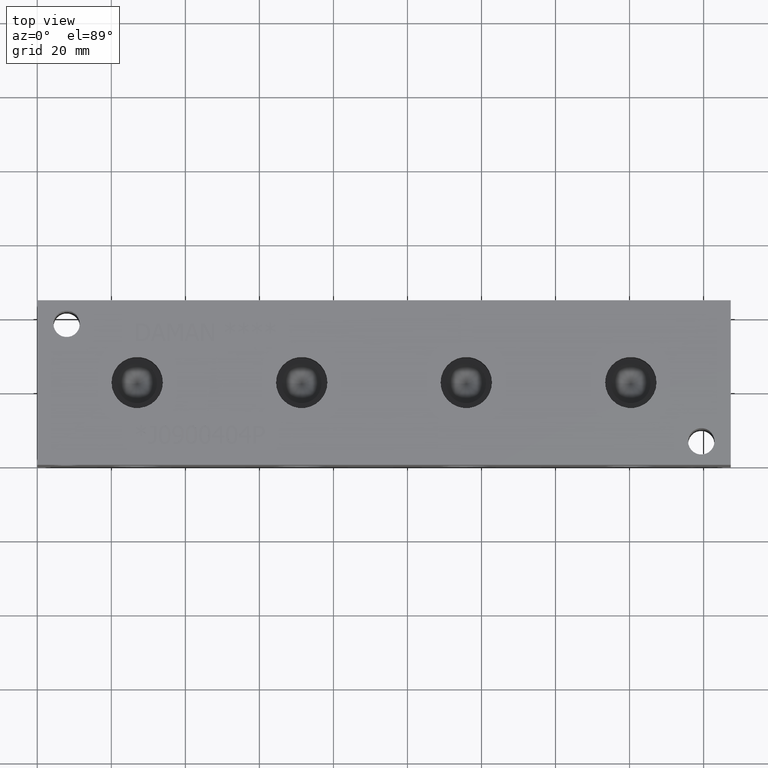
[diagram: clean part render]
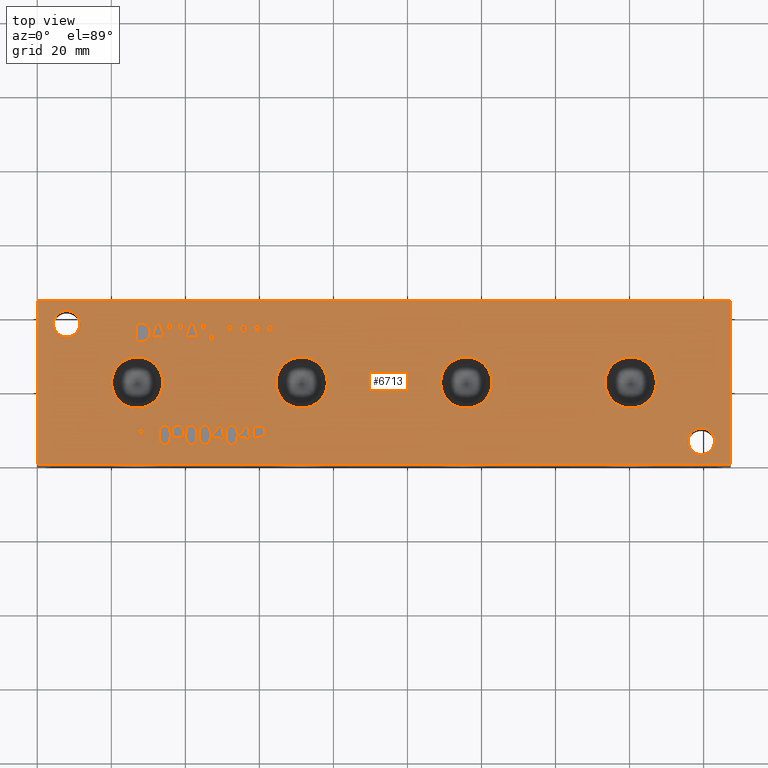
[diagram: same view with one face highlighted and labeled with its STEP entity id]
A machine part, top view. The second image highlights one B-rep face of the part: STEP entity #6713.
In plain terms, the highlighted planar face has unit normal (0, 0, 1).
Its self-contained STEP definition (entity closure, byte-faithful):
#54=CIRCLE('',#6998,6.9342);
#55=CIRCLE('',#6999,6.9342);
#56=CIRCLE('',#7000,6.9342);
#57=CIRCLE('',#7001,6.9342);
#58=CIRCLE('',#7002,6.9342);
#59=CIRCLE('',#7003,6.9342);
#60=CIRCLE('',#7004,6.9342);
#61=CIRCLE('',#7005,6.9342);
#62=CIRCLE('',#7006,3.5687);
#63=CIRCLE('',#7007,3.5687);
#64=CIRCLE('',#7008,3.5687);
#65=CIRCLE('',#7009,3.5687);
#130=FACE_BOUND('',#918,.T.);
#131=FACE_BOUND('',#919,.T.);
#132=FACE_BOUND('',#920,.T.);
#133=FACE_BOUND('',#921,.T.);
#134=FACE_BOUND('',#922,.T.);
#135=FACE_BOUND('',#923,.T.);
#136=FACE_BOUND('',#924,.T.);
#137=FACE_BOUND('',#925,.T.);
#138=FACE_BOUND('',#926,.T.);
#139=FACE_BOUND('',#927,.T.);
#140=FACE_BOUND('',#928,.T.);
#141=FACE_BOUND('',#929,.T.);
#142=FACE_BOUND('',#930,.T.);
#143=FACE_BOUND('',#931,.T.);
#144=FACE_BOUND('',#932,.T.);
#145=FACE_BOUND('',#933,.T.);
#146=FACE_BOUND('',#934,.T.);
#147=FACE_BOUND('',#935,.T.);
#148=FACE_BOUND('',#936,.T.);
#149=FACE_BOUND('',#937,.T.);
#150=FACE_BOUND('',#938,.T.);
#151=FACE_BOUND('',#939,.T.);
#152=FACE_BOUND('',#940,.T.);
#153=FACE_BOUND('',#941,.T.);
#154=FACE_BOUND('',#942,.T.);
#249=PLANE('',#6997);
#559=FACE_OUTER_BOUND('',#917,.T.);
#917=EDGE_LOOP('',(#5009,#5010,#5011,#5012));
#918=EDGE_LOOP('',(#5013,#5014,#5015,#5016,#5017,#5018,#5019,#5020,#5021));
#919=EDGE_LOOP('',(#5022,#5023,#5024,#5025,#5026,#5027,#5028,#5029,#5030,
#5031,#5032));
#920=EDGE_LOOP('',(#5033,#5034,#5035,#5036));
#921=EDGE_LOOP('',(#5037,#5038,#5039,#5040,#5041,#5042,#5043,#5044,#5045,
#5046,#5047));
#922=EDGE_LOOP('',(#5048,#5049,#5050,#5051));
#923=EDGE_LOOP('',(#5052,#5053,#5054,#5055));
#924=EDGE_LOOP('',(#5056,#5057,#5058,#5059,#5060,#5061,#5062,#5063,#5064,
#5065,#5066,#5067,#5068,#5069));
#925=EDGE_LOOP('',(#5070,#5071,#5072,#5073));
#926=EDGE_LOOP('',(#5074,#5075,#5076,#5077,#5078,#5079,#5080,#5081,#5082,
#5083,#5084,#5085,#5086,#5087,#5088,#5089,#5090,#5091));
#927=EDGE_LOOP('',(#5092,#5093,#5094,#5095,#5096,#5097,#5098,#5099,#5100,
#5101,#5102,#5103));
#928=EDGE_LOOP('',(#5104,#5105));
#929=EDGE_LOOP('',(#5106,#5107));
#930=EDGE_LOOP('',(#5108,#5109));
#931=EDGE_LOOP('',(#5110,#5111));
#932=EDGE_LOOP('',(#5112,#5113));
#933=EDGE_LOOP('',(#5114,#5115));
#934=EDGE_LOOP('',(#5116,#5117,#5118,#5119,#5120,#5121,#5122,#5123,#5124,
#5125,#5126,#5127,#5128,#5129,#5130,#5131,#5132,#5133));
#935=EDGE_LOOP('',(#5134,#5135,#5136,#5137,#5138,#5139,#5140,#5141,#5142,
#5143,#5144,#5145,#5146,#5147,#5148,#5149,#5150,#5151));
#936=EDGE_LOOP('',(#5152,#5153,#5154,#5155,#5156,#5157,#5158,#5159,#5160,
#5161));
#937=EDGE_LOOP('',(#5162,#5163,#5164,#5165,#5166,#5167,#5168,#5169));
#938=EDGE_LOOP('',(#5170,#5171,#5172,#5173,#5174,#5175,#5176));
#939=EDGE_LOOP('',(#5177,#5178,#5179,#5180,#5181,#5182,#5183,#5184));
#940=EDGE_LOOP('',(#5185,#5186,#5187,#5188,#5189,#5190,#5191,#5192,#5193,
#5194,#5195,#5196,#5197));
#941=EDGE_LOOP('',(#5198,#5199,#5200,#5201,#5202,#5203,#5204,#5205,#5206,
#5207,#5208,#5209,#5210,#5211,#5212,#5213,#5214,#5215));
#942=EDGE_LOOP('',(#5216,#5217,#5218,#5219,#5220,#5221,#5222,#5223,#5224,
#5225,#5226,#5227,#5228,#5229,#5230,#5231,#5232,#5233));
#1176=LINE('',#8768,#1866);
#1179=LINE('',#8774,#1869);
#1182=LINE('',#8780,#1872);
#1185=LINE('',#8786,#1875);
#1188=LINE('',#8792,#1878);
#1201=LINE('',#8853,#1891);
#1205=LINE('',#8861,#1895);
#1208=LINE('',#8867,#1898);
#1211=LINE('',#8873,#1901);
#1214=LINE('',#8879,#1904);
#1217=LINE('',#8885,#1907);
#1220=LINE('',#8891,#1910);
#1223=LINE('',#8897,#1913);
#1226=LINE('',#8903,#1916);
#1229=LINE('',#8909,#1919);
#1232=LINE('',#8914,#1922);
#1255=LINE('',#9167,#1945);
#1259=LINE('',#9175,#1949);
#1262=LINE('',#9181,#1952);
#1265=LINE('',#9187,#1955);
#1268=LINE('',#9193,#1958);
#1271=LINE('',#9199,#1961);
#1274=LINE('',#9205,#1964);
#1277=LINE('',#9211,#1967);
#1280=LINE('',#9217,#1970);
#1283=LINE('',#9223,#1973);
#1286=LINE('',#9228,#1976);
#1325=LINE('',#9922,#2015);
#1328=LINE('',#9928,#2018);
#1349=LINE('',#10295,#2039);
#1353=LINE('',#10303,#2043);
#1356=LINE('',#10309,#2046);
#1359=LINE('',#10315,#2049);
#1362=LINE('',#10321,#2052);
#1365=LINE('',#10327,#2055);
#1368=LINE('',#10333,#2058);
#1371=LINE('',#10339,#2061);
#1374=LINE('',#10345,#2064);
#1377=LINE('',#10351,#2067);
#1380=LINE('',#10357,#2070);
#1383=LINE('',#10363,#2073);
#1386=LINE('',#10369,#2076);
#1389=LINE('',#10375,#2079);
#1392=LINE('',#10381,#2082);
#1395=LINE('',#10387,#2085);
#1398=LINE('',#10393,#2088);
#1401=LINE('',#10398,#2091);
#1403=LINE('',#10404,#2093);
#1407=LINE('',#10412,#2097);
#1410=LINE('',#10418,#2100);
#1413=LINE('',#10424,#2103);
#1416=LINE('',#10430,#2106);
#1422=LINE('',#10493,#2112);
#1425=LINE('',#10499,#2115);
#1429=LINE('',#10542,#2119);
#1430=LINE('',#10544,#2120);
#1431=LINE('',#10546,#2121);
#1432=LINE('',#10547,#2122);
#1433=LINE('',#10574,#2123);
#1434=LINE('',#10576,#2124);
#1435=LINE('',#10578,#2125);
#1436=LINE('',#10580,#2126);
#1437=LINE('',#10582,#2127);
#1438=LINE('',#10584,#2128);
#1439=LINE('',#10586,#2129);
#1440=LINE('',#10588,#2130);
#1441=LINE('',#10590,#2131);
#1442=LINE('',#10592,#2132);
#1443=LINE('',#10594,#2133);
#1444=LINE('',#10596,#2134);
#1445=LINE('',#10598,#2135);
#1446=LINE('',#10600,#2136);
#1447=LINE('',#10602,#2137);
#1448=LINE('',#10604,#2138);
#1449=LINE('',#10606,#2139);
#1450=LINE('',#10607,#2140);
#1451=LINE('',#10610,#2141);
#1452=LINE('',#10612,#2142);
#1453=LINE('',#10614,#2143);
#1454=LINE('',#10616,#2144);
#1455=LINE('',#10618,#2145);
#1456=LINE('',#10620,#2146);
#1457=LINE('',#10622,#2147);
#1458=LINE('',#10624,#2148);
#1459=LINE('',#10626,#2149);
#1460=LINE('',#10628,#2150);
#1461=LINE('',#10630,#2151);
#1462=LINE('',#10632,#2152);
#1463=LINE('',#10634,#2153);
#1464=LINE('',#10636,#2154);
#1465=LINE('',#10638,#2155);
#1466=LINE('',#10640,#2156);
#1467=LINE('',#10642,#2157);
#1468=LINE('',#10643,#2158);
#1469=LINE('',#10646,#2159);
#1470=LINE('',#10648,#2160);
#1471=LINE('',#10650,#2161);
#1472=LINE('',#10652,#2162);
#1473=LINE('',#10654,#2163);
#1474=LINE('',#10656,#2164);
#1475=LINE('',#10658,#2165);
#1476=LINE('',#10660,#2166);
#1477=LINE('',#10662,#2167);
#1478=LINE('',#10663,#2168);
#1479=LINE('',#10666,#2169);
#1480=LINE('',#10668,#2170);
#1481=LINE('',#10670,#2171);
#1482=LINE('',#10672,#2172);
#1483=LINE('',#10674,#2173);
#1484=LINE('',#10676,#2174);
#1485=LINE('',#10678,#2175);
#1486=LINE('',#10679,#2176);
#1487=LINE('',#10697,#2177);
#1488=LINE('',#10699,#2178);
#1489=LINE('',#10701,#2179);
#1490=LINE('',#10708,#2180);
#1491=LINE('',#10710,#2181);
#1492=LINE('',#10712,#2182);
#1493=LINE('',#10714,#2183);
#1494=LINE('',#10716,#2184);
#1495=LINE('',#10718,#2185);
#1496=LINE('',#10720,#2186);
#1497=LINE('',#10721,#2187);
#1498=LINE('',#10724,#2188);
#1499=LINE('',#10726,#2189);
#1500=LINE('',#10728,#2190);
#1501=LINE('',#10730,#2191);
#1502=LINE('',#10732,#2192);
#1503=LINE('',#10734,#2193);
#1504=LINE('',#10736,#2194);
#1505=LINE('',#10738,#2195);
#1506=LINE('',#10740,#2196);
#1507=LINE('',#10742,#2197);
#1508=LINE('',#10744,#2198);
#1509=LINE('',#10746,#2199);
#1510=LINE('',#10747,#2200);
#1511=LINE('',#10750,#2201);
#1512=LINE('',#10752,#2202);
#1513=LINE('',#10754,#2203);
#1514=LINE('',#10756,#2204);
#1515=LINE('',#10758,#2205);
#1516=LINE('',#10760,#2206);
#1517=LINE('',#10762,#2207);
#1518=LINE('',#10764,#2208);
#1519=LINE('',#10766,#2209);
#1520=LINE('',#10768,#2210);
#1521=LINE('',#10770,#2211);
#1522=LINE('',#10772,#2212);
#1523=LINE('',#10774,#2213);
#1524=LINE('',#10776,#2214);
#1525=LINE('',#10778,#2215);
#1526=LINE('',#10780,#2216);
#1527=LINE('',#10782,#2217);
#1528=LINE('',#10783,#2218);
#1529=LINE('',#10786,#2219);
#1530=LINE('',#10788,#2220);
#1531=LINE('',#10790,#2221);
#1532=LINE('',#10792,#2222);
#1533=LINE('',#10794,#2223);
#1534=LINE('',#10796,#2224);
#1535=LINE('',#10798,#2225);
#1536=LINE('',#10800,#2226);
#1537=LINE('',#10802,#2227);
#1538=LINE('',#10804,#2228);
#1539=LINE('',#10806,#2229);
#1540=LINE('',#10808,#2230);
#1541=LINE('',#10810,#2231);
#1542=LINE('',#10812,#2232);
#1543=LINE('',#10814,#2233);
#1544=LINE('',#10816,#2234);
#1545=LINE('',#10818,#2235);
#1546=LINE('',#10819,#2236);
#1866=VECTOR('',#7288,10.);
#1869=VECTOR('',#7293,10.);
#1872=VECTOR('',#7298,10.);
#1875=VECTOR('',#7303,10.);
#1878=VECTOR('',#7308,10.);
#1891=VECTOR('',#7331,10.);
#1895=VECTOR('',#7337,10.);
#1898=VECTOR('',#7342,10.);
#1901=VECTOR('',#7347,10.);
#1904=VECTOR('',#7352,10.);
#1907=VECTOR('',#7357,10.);
#1910=VECTOR('',#7362,10.);
#1913=VECTOR('',#7367,10.);
#1916=VECTOR('',#7372,10.);
#1919=VECTOR('',#7377,10.);
#1922=VECTOR('',#7382,10.);
#1945=VECTOR('',#7417,10.);
#1949=VECTOR('',#7423,10.);
#1952=VECTOR('',#7428,10.);
#1955=VECTOR('',#7433,10.);
#1958=VECTOR('',#7438,10.);
#1961=VECTOR('',#7443,10.);
#1964=VECTOR('',#7448,10.);
#1967=VECTOR('',#7453,10.);
#1970=VECTOR('',#7458,10.);
#1973=VECTOR('',#7463,10.);
#1976=VECTOR('',#7468,10.);
#2015=VECTOR('',#7515,10.);
#2018=VECTOR('',#7520,10.);
#2039=VECTOR('',#7547,10.);
#2043=VECTOR('',#7553,10.);
#2046=VECTOR('',#7558,10.);
#2049=VECTOR('',#7563,10.);
#2052=VECTOR('',#7568,10.);
#2055=VECTOR('',#7573,10.);
#2058=VECTOR('',#7578,10.);
#2061=VECTOR('',#7583,10.);
#2064=VECTOR('',#7588,10.);
#2067=VECTOR('',#7593,10.);
#2070=VECTOR('',#7598,10.);
#2073=VECTOR('',#7603,10.);
#2076=VECTOR('',#7608,10.);
#2079=VECTOR('',#7613,10.);
#2082=VECTOR('',#7618,10.);
#2085=VECTOR('',#7623,10.);
#2088=VECTOR('',#7628,10.);
#2091=VECTOR('',#7633,10.);
#2093=VECTOR('',#7639,10.);
#2097=VECTOR('',#7645,10.);
#2100=VECTOR('',#7650,10.);
#2103=VECTOR('',#7655,10.);
#2106=VECTOR('',#7660,10.);
#2112=VECTOR('',#7668,10.);
#2115=VECTOR('',#7673,10.);
#2119=VECTOR('',#7681,10.);
#2120=VECTOR('',#7682,10.);
#2121=VECTOR('',#7683,10.);
#2122=VECTOR('',#7684,10.);
#2123=VECTOR('',#7709,10.);
#2124=VECTOR('',#7710,10.);
#2125=VECTOR('',#7711,10.);
#2126=VECTOR('',#7712,10.);
#2127=VECTOR('',#7713,10.);
#2128=VECTOR('',#7714,10.);
#2129=VECTOR('',#7715,10.);
#2130=VECTOR('',#7716,10.);
#2131=VECTOR('',#7717,10.);
#2132=VECTOR('',#7718,10.);
#2133=VECTOR('',#7719,10.);
#2134=VECTOR('',#7720,10.);
#2135=VECTOR('',#7721,10.);
#2136=VECTOR('',#7722,10.);
#2137=VECTOR('',#7723,10.);
#2138=VECTOR('',#7724,10.);
#2139=VECTOR('',#7725,10.);
#2140=VECTOR('',#7726,10.);
#2141=VECTOR('',#7727,10.);
#2142=VECTOR('',#7728,10.);
#2143=VECTOR('',#7729,10.);
#2144=VECTOR('',#7730,10.);
#2145=VECTOR('',#7731,10.);
#2146=VECTOR('',#7732,10.);
#2147=VECTOR('',#7733,10.);
#2148=VECTOR('',#7734,10.);
#2149=VECTOR('',#7735,10.);
#2150=VECTOR('',#7736,10.);
#2151=VECTOR('',#7737,10.);
#2152=VECTOR('',#7738,10.);
#2153=VECTOR('',#7739,10.);
#2154=VECTOR('',#7740,10.);
#2155=VECTOR('',#7741,10.);
#2156=VECTOR('',#7742,10.);
#2157=VECTOR('',#7743,10.);
#2158=VECTOR('',#7744,10.);
#2159=VECTOR('',#7745,10.);
#2160=VECTOR('',#7746,10.);
#2161=VECTOR('',#7747,10.);
#2162=VECTOR('',#7748,10.);
#2163=VECTOR('',#7749,10.);
#2164=VECTOR('',#7750,10.);
#2165=VECTOR('',#7751,10.);
#2166=VECTOR('',#7752,10.);
#2167=VECTOR('',#7753,10.);
#2168=VECTOR('',#7754,10.);
#2169=VECTOR('',#7755,10.);
#2170=VECTOR('',#7756,10.);
#2171=VECTOR('',#7757,10.);
#2172=VECTOR('',#7758,10.);
#2173=VECTOR('',#7759,10.);
#2174=VECTOR('',#7760,10.);
#2175=VECTOR('',#7761,10.);
#2176=VECTOR('',#7762,10.);
#2177=VECTOR('',#7763,10.);
#2178=VECTOR('',#7764,10.);
#2179=VECTOR('',#7765,10.);
#2180=VECTOR('',#7766,10.);
#2181=VECTOR('',#7767,10.);
#2182=VECTOR('',#7768,10.);
#2183=VECTOR('',#7769,10.);
#2184=VECTOR('',#7770,10.);
#2185=VECTOR('',#7771,10.);
#2186=VECTOR('',#7772,10.);
#2187=VECTOR('',#7773,10.);
#2188=VECTOR('',#7774,10.);
#2189=VECTOR('',#7775,10.);
#2190=VECTOR('',#7776,10.);
#2191=VECTOR('',#7777,10.);
#2192=VECTOR('',#7778,10.);
#2193=VECTOR('',#7779,10.);
#2194=VECTOR('',#7780,10.);
#2195=VECTOR('',#7781,10.);
#2196=VECTOR('',#7782,10.);
#2197=VECTOR('',#7783,10.);
#2198=VECTOR('',#7784,10.);
#2199=VECTOR('',#7785,10.);
#2200=VECTOR('',#7786,10.);
#2201=VECTOR('',#7787,10.);
#2202=VECTOR('',#7788,10.);
#2203=VECTOR('',#7789,10.);
#2204=VECTOR('',#7790,10.);
#2205=VECTOR('',#7791,10.);
#2206=VECTOR('',#7792,10.);
#2207=VECTOR('',#7793,10.);
#2208=VECTOR('',#7794,10.);
#2209=VECTOR('',#7795,10.);
#2210=VECTOR('',#7796,10.);
#2211=VECTOR('',#7797,10.);
#2212=VECTOR('',#7798,10.);
#2213=VECTOR('',#7799,10.);
#2214=VECTOR('',#7800,10.);
#2215=VECTOR('',#7801,10.);
#2216=VECTOR('',#7802,10.);
#2217=VECTOR('',#7803,10.);
#2218=VECTOR('',#7804,10.);
#2219=VECTOR('',#7805,10.);
#2220=VECTOR('',#7806,10.);
#2221=VECTOR('',#7807,10.);
#2222=VECTOR('',#7808,10.);
#2223=VECTOR('',#7809,10.);
#2224=VECTOR('',#7810,10.);
#2225=VECTOR('',#7811,10.);
#2226=VECTOR('',#7812,10.);
#2227=VECTOR('',#7813,10.);
#2228=VECTOR('',#7814,10.);
#2229=VECTOR('',#7815,10.);
#2230=VECTOR('',#7816,10.);
#2231=VECTOR('',#7817,10.);
#2232=VECTOR('',#7818,10.);
#2233=VECTOR('',#7819,10.);
#2234=VECTOR('',#7820,10.);
#2235=VECTOR('',#7821,10.);
#2236=VECTOR('',#7822,10.);
#2548=B_SPLINE_CURVE_WITH_KNOTS('',2,(#8735,#8736,#8737,#8738),
 .UNSPECIFIED.,.F.,.F.,(3,1,3),(0.,1.,2.),.UNSPECIFIED.);
#2550=B_SPLINE_CURVE_WITH_KNOTS('',2,(#8756,#8757,#8758,#8759),
 .UNSPECIFIED.,.F.,.F.,(3,1,3),(0.,1.,2.),.UNSPECIFIED.);
#2552=B_SPLINE_CURVE_WITH_KNOTS('',2,(#8805,#8806,#8807,#8808),
 .UNSPECIFIED.,.F.,.F.,(3,1,3),(0.,1.,2.),.UNSPECIFIED.);
#2554=B_SPLINE_CURVE_WITH_KNOTS('',2,(#8823,#8824,#8825,#8826),
 .UNSPECIFIED.,.F.,.F.,(3,1,3),(0.,1.,2.),.UNSPECIFIED.);
#2572=B_SPLINE_CURVE_WITH_KNOTS('',2,(#9079,#9080,#9081,#9082),
 .UNSPECIFIED.,.F.,.F.,(3,1,3),(0.,1.,2.),.UNSPECIFIED.);
#2574=B_SPLINE_CURVE_WITH_KNOTS('',2,(#9100,#9101,#9102,#9103),
 .UNSPECIFIED.,.F.,.F.,(3,1,3),(0.,1.,2.),.UNSPECIFIED.);
#2576=B_SPLINE_CURVE_WITH_KNOTS('',2,(#9119,#9120,#9121,#9122),
 .UNSPECIFIED.,.F.,.F.,(3,1,3),(0.,1.,2.),.UNSPECIFIED.);
#2578=B_SPLINE_CURVE_WITH_KNOTS('',2,(#9137,#9138,#9139,#9140),
 .UNSPECIFIED.,.F.,.F.,(3,1,3),(0.,1.,2.),.UNSPECIFIED.);
#2596=B_SPLINE_CURVE_WITH_KNOTS('',2,(#9393,#9394,#9395,#9396),
 .UNSPECIFIED.,.F.,.F.,(3,1,3),(0.,1.,2.),.UNSPECIFIED.);
#2598=B_SPLINE_CURVE_WITH_KNOTS('',2,(#9414,#9415,#9416,#9417),
 .UNSPECIFIED.,.F.,.F.,(3,1,3),(0.,1.,2.),.UNSPECIFIED.);
#2600=B_SPLINE_CURVE_WITH_KNOTS('',2,(#9433,#9434,#9435,#9436),
 .UNSPECIFIED.,.F.,.F.,(3,1,3),(0.,1.,2.),.UNSPECIFIED.);
#2602=B_SPLINE_CURVE_WITH_KNOTS('',2,(#9451,#9452,#9453,#9454),
 .UNSPECIFIED.,.F.,.F.,(3,1,3),(0.,1.,2.),.UNSPECIFIED.);
#2620=B_SPLINE_CURVE_WITH_KNOTS('',2,(#9622,#9623,#9624,#9625),
 .UNSPECIFIED.,.F.,.F.,(3,1,3),(0.,1.,2.),.UNSPECIFIED.);
#2622=B_SPLINE_CURVE_WITH_KNOTS('',2,(#9643,#9644,#9645,#9646),
 .UNSPECIFIED.,.F.,.F.,(3,1,3),(0.,1.,2.),.UNSPECIFIED.);
#2624=B_SPLINE_CURVE_WITH_KNOTS('',2,(#9662,#9663,#9664,#9665),
 .UNSPECIFIED.,.F.,.F.,(3,1,3),(0.,1.,2.),.UNSPECIFIED.);
#2626=B_SPLINE_CURVE_WITH_KNOTS('',2,(#9680,#9681,#9682,#9683),
 .UNSPECIFIED.,.F.,.F.,(3,1,3),(0.,1.,2.),.UNSPECIFIED.);
#2642=B_SPLINE_CURVE_WITH_KNOTS('',2,(#9832,#9833,#9834,#9835),
 .UNSPECIFIED.,.F.,.F.,(3,1,3),(0.,1.,2.),.UNSPECIFIED.);
#2644=B_SPLINE_CURVE_WITH_KNOTS('',2,(#9853,#9854,#9855,#9856),
 .UNSPECIFIED.,.F.,.F.,(3,1,3),(0.,1.,2.),.UNSPECIFIED.);
#2646=B_SPLINE_CURVE_WITH_KNOTS('',2,(#9872,#9873,#9874,#9875),
 .UNSPECIFIED.,.F.,.F.,(3,1,3),(0.,1.,2.),.UNSPECIFIED.);
#2648=B_SPLINE_CURVE_WITH_KNOTS('',2,(#9891,#9892,#9893,#9894),
 .UNSPECIFIED.,.F.,.F.,(3,1,3),(0.,1.,2.),.UNSPECIFIED.);
#2650=B_SPLINE_CURVE_WITH_KNOTS('',2,(#9910,#9911,#9912,#9913),
 .UNSPECIFIED.,.F.,.F.,(3,1,3),(0.,1.,2.),.UNSPECIFIED.);
#2652=B_SPLINE_CURVE_WITH_KNOTS('',2,(#9941,#9942,#9943,#9944),
 .UNSPECIFIED.,.F.,.F.,(3,1,3),(0.,1.,2.),.UNSPECIFIED.);
#2654=B_SPLINE_CURVE_WITH_KNOTS('',2,(#9960,#9961,#9962,#9963),
 .UNSPECIFIED.,.F.,.F.,(3,1,3),(0.,1.,2.),.UNSPECIFIED.);
#2656=B_SPLINE_CURVE_WITH_KNOTS('',2,(#9979,#9980,#9981,#9982),
 .UNSPECIFIED.,.F.,.F.,(3,1,3),(0.,1.,2.),.UNSPECIFIED.);
#2658=B_SPLINE_CURVE_WITH_KNOTS('',2,(#9998,#9999,#10000,#10001),
 .UNSPECIFIED.,.F.,.F.,(3,1,3),(0.,1.,2.),.UNSPECIFIED.);
#2660=B_SPLINE_CURVE_WITH_KNOTS('',2,(#10017,#10018,#10019,#10020),
 .UNSPECIFIED.,.F.,.F.,(3,1,3),(0.,1.,2.),.UNSPECIFIED.);
#2662=B_SPLINE_CURVE_WITH_KNOTS('',2,(#10036,#10037,#10038,#10039),
 .UNSPECIFIED.,.F.,.F.,(3,1,3),(0.,1.,2.),.UNSPECIFIED.);
#2664=B_SPLINE_CURVE_WITH_KNOTS('',2,(#10054,#10055,#10056,#10057),
 .UNSPECIFIED.,.F.,.F.,(3,1,3),(0.,1.,2.),.UNSPECIFIED.);
#2682=B_SPLINE_CURVE_WITH_KNOTS('',2,(#10225,#10226,#10227,#10228),
 .UNSPECIFIED.,.F.,.F.,(3,1,3),(0.,1.,2.),.UNSPECIFIED.);
#2684=B_SPLINE_CURVE_WITH_KNOTS('',2,(#10246,#10247,#10248,#10249),
 .UNSPECIFIED.,.F.,.F.,(3,1,3),(0.,1.,2.),.UNSPECIFIED.);
#2686=B_SPLINE_CURVE_WITH_KNOTS('',2,(#10265,#10266,#10267,#10268),
 .UNSPECIFIED.,.F.,.F.,(3,1,3),(0.,1.,2.),.UNSPECIFIED.);
#2688=B_SPLINE_CURVE_WITH_KNOTS('',2,(#10283,#10284,#10285,#10286),
 .UNSPECIFIED.,.F.,.F.,(3,1,3),(0.,1.,2.),.UNSPECIFIED.);
#2690=B_SPLINE_CURVE_WITH_KNOTS('',2,(#10443,#10444,#10445,#10446),
 .UNSPECIFIED.,.F.,.F.,(3,1,3),(0.,1.,2.),.UNSPECIFIED.);
#2692=B_SPLINE_CURVE_WITH_KNOTS('',2,(#10462,#10463,#10464,#10465),
 .UNSPECIFIED.,.F.,.F.,(3,1,3),(0.,1.,2.),.UNSPECIFIED.);
#2694=B_SPLINE_CURVE_WITH_KNOTS('',2,(#10481,#10482,#10483,#10484),
 .UNSPECIFIED.,.F.,.F.,(3,1,3),(0.,1.,2.),.UNSPECIFIED.);
#2696=B_SPLINE_CURVE_WITH_KNOTS('',2,(#10512,#10513,#10514,#10515),
 .UNSPECIFIED.,.F.,.F.,(3,1,3),(0.,1.,2.),.UNSPECIFIED.);
#2698=B_SPLINE_CURVE_WITH_KNOTS('',2,(#10530,#10531,#10532,#10533),
 .UNSPECIFIED.,.F.,.F.,(3,1,3),(0.,1.,2.),.UNSPECIFIED.);
#2700=B_SPLINE_CURVE_WITH_KNOTS('',2,(#10682,#10683,#10684,#10685),
 .UNSPECIFIED.,.F.,.F.,(3,1,3),(0.,1.,2.),.UNSPECIFIED.);
#2701=B_SPLINE_CURVE_WITH_KNOTS('',2,(#10687,#10688,#10689,#10690),
 .UNSPECIFIED.,.F.,.F.,(3,1,3),(0.,1.,2.),.UNSPECIFIED.);
#2702=B_SPLINE_CURVE_WITH_KNOTS('',2,(#10692,#10693,#10694,#10695),
 .UNSPECIFIED.,.F.,.F.,(3,1,3),(0.,1.,2.),.UNSPECIFIED.);
#2703=B_SPLINE_CURVE_WITH_KNOTS('',2,(#10702,#10703,#10704,#10705),
 .UNSPECIFIED.,.F.,.F.,(3,1,3),(0.,1.,2.),.UNSPECIFIED.);
#2730=VERTEX_POINT('',#8733);
#2731=VERTEX_POINT('',#8734);
#2734=VERTEX_POINT('',#8755);
#2736=VERTEX_POINT('',#8767);
#2738=VERTEX_POINT('',#8773);
#2740=VERTEX_POINT('',#8779);
#2742=VERTEX_POINT('',#8785);
#2744=VERTEX_POINT('',#8791);
#2746=VERTEX_POINT('',#8804);
#2754=VERTEX_POINT('',#8851);
#2755=VERTEX_POINT('',#8852);
#2758=VERTEX_POINT('',#8860);
#2760=VERTEX_POINT('',#8866);
#2762=VERTEX_POINT('',#8872);
#2764=VERTEX_POINT('',#8878);
#2766=VERTEX_POINT('',#8884);
#2768=VERTEX_POINT('',#8890);
#2770=VERTEX_POINT('',#8896);
#2772=VERTEX_POINT('',#8902);
#2774=VERTEX_POINT('',#8908);
#2792=VERTEX_POINT('',#9077);
#2793=VERTEX_POINT('',#9078);
#2796=VERTEX_POINT('',#9099);
#2798=VERTEX_POINT('',#9118);
#2806=VERTEX_POINT('',#9165);
#2807=VERTEX_POINT('',#9166);
#2810=VERTEX_POINT('',#9174);
#2812=VERTEX_POINT('',#9180);
#2814=VERTEX_POINT('',#9186);
#2816=VERTEX_POINT('',#9192);
#2818=VERTEX_POINT('',#9198);
#2820=VERTEX_POINT('',#9204);
#2822=VERTEX_POINT('',#9210);
#2824=VERTEX_POINT('',#9216);
#2826=VERTEX_POINT('',#9222);
#2844=VERTEX_POINT('',#9391);
#2845=VERTEX_POINT('',#9392);
#2848=VERTEX_POINT('',#9413);
#2850=VERTEX_POINT('',#9432);
#2868=VERTEX_POINT('',#9620);
#2869=VERTEX_POINT('',#9621);
#2872=VERTEX_POINT('',#9642);
#2874=VERTEX_POINT('',#9661);
#2890=VERTEX_POINT('',#9830);
#2891=VERTEX_POINT('',#9831);
#2894=VERTEX_POINT('',#9852);
#2896=VERTEX_POINT('',#9871);
#2898=VERTEX_POINT('',#9890);
#2900=VERTEX_POINT('',#9909);
#2902=VERTEX_POINT('',#9921);
#2904=VERTEX_POINT('',#9927);
#2906=VERTEX_POINT('',#9940);
#2908=VERTEX_POINT('',#9959);
#2910=VERTEX_POINT('',#9978);
#2912=VERTEX_POINT('',#9997);
#2914=VERTEX_POINT('',#10016);
#2916=VERTEX_POINT('',#10035);
#2934=VERTEX_POINT('',#10223);
#2935=VERTEX_POINT('',#10224);
#2938=VERTEX_POINT('',#10245);
#2940=VERTEX_POINT('',#10264);
#2942=VERTEX_POINT('',#10293);
#2943=VERTEX_POINT('',#10294);
#2946=VERTEX_POINT('',#10302);
#2948=VERTEX_POINT('',#10308);
#2950=VERTEX_POINT('',#10314);
#2952=VERTEX_POINT('',#10320);
#2954=VERTEX_POINT('',#10326);
#2956=VERTEX_POINT('',#10332);
#2958=VERTEX_POINT('',#10338);
#2960=VERTEX_POINT('',#10344);
#2962=VERTEX_POINT('',#10350);
#2964=VERTEX_POINT('',#10356);
#2966=VERTEX_POINT('',#10362);
#2968=VERTEX_POINT('',#10368);
#2970=VERTEX_POINT('',#10374);
#2972=VERTEX_POINT('',#10380);
#2974=VERTEX_POINT('',#10386);
#2976=VERTEX_POINT('',#10392);
#2978=VERTEX_POINT('',#10402);
#2979=VERTEX_POINT('',#10403);
#2982=VERTEX_POINT('',#10411);
#2984=VERTEX_POINT('',#10417);
#2986=VERTEX_POINT('',#10423);
#2988=VERTEX_POINT('',#10429);
#2990=VERTEX_POINT('',#10442);
#2992=VERTEX_POINT('',#10461);
#2994=VERTEX_POINT('',#10480);
#2996=VERTEX_POINT('',#10492);
#2998=VERTEX_POINT('',#10498);
#3000=VERTEX_POINT('',#10511);
#3002=VERTEX_POINT('',#10540);
#3003=VERTEX_POINT('',#10541);
#3004=VERTEX_POINT('',#10543);
#3005=VERTEX_POINT('',#10545);
#3006=VERTEX_POINT('',#10548);
#3007=VERTEX_POINT('',#10549);
#3008=VERTEX_POINT('',#10552);
#3009=VERTEX_POINT('',#10553);
#3010=VERTEX_POINT('',#10556);
#3011=VERTEX_POINT('',#10557);
#3012=VERTEX_POINT('',#10560);
#3013=VERTEX_POINT('',#10561);
#3014=VERTEX_POINT('',#10564);
#3015=VERTEX_POINT('',#10565);
#3016=VERTEX_POINT('',#10568);
#3017=VERTEX_POINT('',#10569);
#3018=VERTEX_POINT('',#10572);
#3019=VERTEX_POINT('',#10573);
#3020=VERTEX_POINT('',#10575);
#3021=VERTEX_POINT('',#10577);
#3022=VERTEX_POINT('',#10579);
#3023=VERTEX_POINT('',#10581);
#3024=VERTEX_POINT('',#10583);
#3025=VERTEX_POINT('',#10585);
#3026=VERTEX_POINT('',#10587);
#3027=VERTEX_POINT('',#10589);
#3028=VERTEX_POINT('',#10591);
#3029=VERTEX_POINT('',#10593);
#3030=VERTEX_POINT('',#10595);
#3031=VERTEX_POINT('',#10597);
#3032=VERTEX_POINT('',#10599);
#3033=VERTEX_POINT('',#10601);
#3034=VERTEX_POINT('',#10603);
#3035=VERTEX_POINT('',#10605);
#3036=VERTEX_POINT('',#10608);
#3037=VERTEX_POINT('',#10609);
#3038=VERTEX_POINT('',#10611);
#3039=VERTEX_POINT('',#10613);
#3040=VERTEX_POINT('',#10615);
#3041=VERTEX_POINT('',#10617);
#3042=VERTEX_POINT('',#10619);
#3043=VERTEX_POINT('',#10621);
#3044=VERTEX_POINT('',#10623);
#3045=VERTEX_POINT('',#10625);
#3046=VERTEX_POINT('',#10627);
#3047=VERTEX_POINT('',#10629);
#3048=VERTEX_POINT('',#10631);
#3049=VERTEX_POINT('',#10633);
#3050=VERTEX_POINT('',#10635);
#3051=VERTEX_POINT('',#10637);
#3052=VERTEX_POINT('',#10639);
#3053=VERTEX_POINT('',#10641);
#3054=VERTEX_POINT('',#10644);
#3055=VERTEX_POINT('',#10645);
#3056=VERTEX_POINT('',#10647);
#3057=VERTEX_POINT('',#10649);
#3058=VERTEX_POINT('',#10651);
#3059=VERTEX_POINT('',#10653);
#3060=VERTEX_POINT('',#10655);
#3061=VERTEX_POINT('',#10657);
#3062=VERTEX_POINT('',#10659);
#3063=VERTEX_POINT('',#10661);
#3064=VERTEX_POINT('',#10664);
#3065=VERTEX_POINT('',#10665);
#3066=VERTEX_POINT('',#10667);
#3067=VERTEX_POINT('',#10669);
#3068=VERTEX_POINT('',#10671);
#3069=VERTEX_POINT('',#10673);
#3070=VERTEX_POINT('',#10675);
#3071=VERTEX_POINT('',#10677);
#3072=VERTEX_POINT('',#10680);
#3073=VERTEX_POINT('',#10681);
#3074=VERTEX_POINT('',#10686);
#3075=VERTEX_POINT('',#10691);
#3076=VERTEX_POINT('',#10696);
#3077=VERTEX_POINT('',#10698);
#3078=VERTEX_POINT('',#10700);
#3079=VERTEX_POINT('',#10706);
#3080=VERTEX_POINT('',#10707);
#3081=VERTEX_POINT('',#10709);
#3082=VERTEX_POINT('',#10711);
#3083=VERTEX_POINT('',#10713);
#3084=VERTEX_POINT('',#10715);
#3085=VERTEX_POINT('',#10717);
#3086=VERTEX_POINT('',#10719);
#3087=VERTEX_POINT('',#10722);
#3088=VERTEX_POINT('',#10723);
#3089=VERTEX_POINT('',#10725);
#3090=VERTEX_POINT('',#10727);
#3091=VERTEX_POINT('',#10729);
#3092=VERTEX_POINT('',#10731);
#3093=VERTEX_POINT('',#10733);
#3094=VERTEX_POINT('',#10735);
#3095=VERTEX_POINT('',#10737);
#3096=VERTEX_POINT('',#10739);
#3097=VERTEX_POINT('',#10741);
#3098=VERTEX_POINT('',#10743);
#3099=VERTEX_POINT('',#10745);
#3100=VERTEX_POINT('',#10748);
#3101=VERTEX_POINT('',#10749);
#3102=VERTEX_POINT('',#10751);
#3103=VERTEX_POINT('',#10753);
#3104=VERTEX_POINT('',#10755);
#3105=VERTEX_POINT('',#10757);
#3106=VERTEX_POINT('',#10759);
#3107=VERTEX_POINT('',#10761);
#3108=VERTEX_POINT('',#10763);
#3109=VERTEX_POINT('',#10765);
#3110=VERTEX_POINT('',#10767);
#3111=VERTEX_POINT('',#10769);
#3112=VERTEX_POINT('',#10771);
#3113=VERTEX_POINT('',#10773);
#3114=VERTEX_POINT('',#10775);
#3115=VERTEX_POINT('',#10777);
#3116=VERTEX_POINT('',#10779);
#3117=VERTEX_POINT('',#10781);
#3118=VERTEX_POINT('',#10784);
#3119=VERTEX_POINT('',#10785);
#3120=VERTEX_POINT('',#10787);
#3121=VERTEX_POINT('',#10789);
#3122=VERTEX_POINT('',#10791);
#3123=VERTEX_POINT('',#10793);
#3124=VERTEX_POINT('',#10795);
#3125=VERTEX_POINT('',#10797);
#3126=VERTEX_POINT('',#10799);
#3127=VERTEX_POINT('',#10801);
#3128=VERTEX_POINT('',#10803);
#3129=VERTEX_POINT('',#10805);
#3130=VERTEX_POINT('',#10807);
#3131=VERTEX_POINT('',#10809);
#3132=VERTEX_POINT('',#10811);
#3133=VERTEX_POINT('',#10813);
#3134=VERTEX_POINT('',#10815);
#3135=VERTEX_POINT('',#10817);
#3373=EDGE_CURVE('',#2730,#2731,#2548,.T.);
#3377=EDGE_CURVE('',#2734,#2730,#2550,.T.);
#3380=EDGE_CURVE('',#2736,#2734,#1176,.T.);
#3383=EDGE_CURVE('',#2738,#2736,#1179,.T.);
#3386=EDGE_CURVE('',#2740,#2738,#1182,.T.);
#3389=EDGE_CURVE('',#2742,#2740,#1185,.T.);
#3392=EDGE_CURVE('',#2744,#2742,#1188,.T.);
#3395=EDGE_CURVE('',#2746,#2744,#2552,.T.);
#3398=EDGE_CURVE('',#2731,#2746,#2554,.T.);
#3409=EDGE_CURVE('',#2754,#2755,#1201,.T.);
#3413=EDGE_CURVE('',#2758,#2754,#1205,.T.);
#3416=EDGE_CURVE('',#2760,#2758,#1208,.T.);
#3419=EDGE_CURVE('',#2762,#2760,#1211,.T.);
#3422=EDGE_CURVE('',#2764,#2762,#1214,.T.);
#3425=EDGE_CURVE('',#2766,#2764,#1217,.T.);
#3428=EDGE_CURVE('',#2768,#2766,#1220,.T.);
#3431=EDGE_CURVE('',#2770,#2768,#1223,.T.);
#3434=EDGE_CURVE('',#2772,#2770,#1226,.T.);
#3437=EDGE_CURVE('',#2774,#2772,#1229,.T.);
#3440=EDGE_CURVE('',#2755,#2774,#1232,.T.);
#3466=EDGE_CURVE('',#2792,#2793,#2572,.T.);
#3470=EDGE_CURVE('',#2796,#2792,#2574,.T.);
#3473=EDGE_CURVE('',#2798,#2796,#2576,.T.);
#3476=EDGE_CURVE('',#2793,#2798,#2578,.T.);
#3487=EDGE_CURVE('',#2806,#2807,#1255,.T.);
#3491=EDGE_CURVE('',#2810,#2806,#1259,.T.);
#3494=EDGE_CURVE('',#2812,#2810,#1262,.T.);
#3497=EDGE_CURVE('',#2814,#2812,#1265,.T.);
#3500=EDGE_CURVE('',#2816,#2814,#1268,.T.);
#3503=EDGE_CURVE('',#2818,#2816,#1271,.T.);
#3506=EDGE_CURVE('',#2820,#2818,#1274,.T.);
#3509=EDGE_CURVE('',#2822,#2820,#1277,.T.);
#3512=EDGE_CURVE('',#2824,#2822,#1280,.T.);
#3515=EDGE_CURVE('',#2826,#2824,#1283,.T.);
#3518=EDGE_CURVE('',#2807,#2826,#1286,.T.);
#3544=EDGE_CURVE('',#2844,#2845,#2596,.T.);
#3548=EDGE_CURVE('',#2848,#2844,#2598,.T.);
#3551=EDGE_CURVE('',#2850,#2848,#2600,.T.);
#3554=EDGE_CURVE('',#2845,#2850,#2602,.T.);
#3580=EDGE_CURVE('',#2868,#2869,#2620,.T.);
#3584=EDGE_CURVE('',#2872,#2868,#2622,.T.);
#3587=EDGE_CURVE('',#2874,#2872,#2624,.T.);
#3590=EDGE_CURVE('',#2869,#2874,#2626,.T.);
#3613=EDGE_CURVE('',#2890,#2891,#2642,.T.);
#3617=EDGE_CURVE('',#2894,#2890,#2644,.T.);
#3620=EDGE_CURVE('',#2896,#2894,#2646,.T.);
#3623=EDGE_CURVE('',#2898,#2896,#2648,.T.);
#3626=EDGE_CURVE('',#2900,#2898,#2650,.T.);
#3629=EDGE_CURVE('',#2902,#2900,#1325,.T.);
#3632=EDGE_CURVE('',#2904,#2902,#1328,.T.);
#3635=EDGE_CURVE('',#2906,#2904,#2652,.T.);
#3638=EDGE_CURVE('',#2908,#2906,#2654,.T.);
#3641=EDGE_CURVE('',#2910,#2908,#2656,.T.);
#3644=EDGE_CURVE('',#2912,#2910,#2658,.T.);
#3647=EDGE_CURVE('',#2914,#2912,#2660,.T.);
#3650=EDGE_CURVE('',#2916,#2914,#2662,.T.);
#3653=EDGE_CURVE('',#2891,#2916,#2664,.T.);
#3679=EDGE_CURVE('',#2934,#2935,#2682,.T.);
#3683=EDGE_CURVE('',#2938,#2934,#2684,.T.);
#3686=EDGE_CURVE('',#2940,#2938,#2686,.T.);
#3689=EDGE_CURVE('',#2935,#2940,#2688,.T.);
#3691=EDGE_CURVE('',#2942,#2943,#1349,.T.);
#3695=EDGE_CURVE('',#2946,#2942,#1353,.T.);
#3698=EDGE_CURVE('',#2948,#2946,#1356,.T.);
#3701=EDGE_CURVE('',#2950,#2948,#1359,.T.);
#3704=EDGE_CURVE('',#2952,#2950,#1362,.T.);
#3707=EDGE_CURVE('',#2954,#2952,#1365,.T.);
#3710=EDGE_CURVE('',#2956,#2954,#1368,.T.);
#3713=EDGE_CURVE('',#2958,#2956,#1371,.T.);
#3716=EDGE_CURVE('',#2960,#2958,#1374,.T.);
#3719=EDGE_CURVE('',#2962,#2960,#1377,.T.);
#3722=EDGE_CURVE('',#2964,#2962,#1380,.T.);
#3725=EDGE_CURVE('',#2966,#2964,#1383,.T.);
#3728=EDGE_CURVE('',#2968,#2966,#1386,.T.);
#3731=EDGE_CURVE('',#2970,#2968,#1389,.T.);
#3734=EDGE_CURVE('',#2972,#2970,#1392,.T.);
#3737=EDGE_CURVE('',#2974,#2972,#1395,.T.);
#3740=EDGE_CURVE('',#2976,#2974,#1398,.T.);
#3743=EDGE_CURVE('',#2943,#2976,#1401,.T.);
#3745=EDGE_CURVE('',#2978,#2979,#1403,.T.);
#3749=EDGE_CURVE('',#2982,#2978,#1407,.T.);
#3752=EDGE_CURVE('',#2984,#2982,#1410,.T.);
#3755=EDGE_CURVE('',#2986,#2984,#1413,.T.);
#3758=EDGE_CURVE('',#2988,#2986,#1416,.T.);
#3761=EDGE_CURVE('',#2990,#2988,#2690,.T.);
#3764=EDGE_CURVE('',#2992,#2990,#2692,.T.);
#3767=EDGE_CURVE('',#2994,#2992,#2694,.T.);
#3770=EDGE_CURVE('',#2996,#2994,#1422,.T.);
#3773=EDGE_CURVE('',#2998,#2996,#1425,.T.);
#3776=EDGE_CURVE('',#3000,#2998,#2696,.T.);
#3779=EDGE_CURVE('',#2979,#3000,#2698,.T.);
#3781=EDGE_CURVE('',#3002,#3003,#1429,.T.);
#3782=EDGE_CURVE('',#3003,#3004,#1430,.T.);
#3783=EDGE_CURVE('',#3004,#3005,#1431,.T.);
#3784=EDGE_CURVE('',#3005,#3002,#1432,.T.);
#3785=EDGE_CURVE('',#3006,#3007,#54,.T.);
#3786=EDGE_CURVE('',#3007,#3006,#55,.T.);
#3787=EDGE_CURVE('',#3008,#3009,#56,.T.);
#3788=EDGE_CURVE('',#3009,#3008,#57,.T.);
#3789=EDGE_CURVE('',#3010,#3011,#58,.T.);
#3790=EDGE_CURVE('',#3011,#3010,#59,.T.);
#3791=EDGE_CURVE('',#3012,#3013,#60,.T.);
#3792=EDGE_CURVE('',#3013,#3012,#61,.T.);
#3793=EDGE_CURVE('',#3014,#3015,#62,.T.);
#3794=EDGE_CURVE('',#3015,#3014,#63,.T.);
#3795=EDGE_CURVE('',#3016,#3017,#64,.T.);
#3796=EDGE_CURVE('',#3017,#3016,#65,.T.);
#3797=EDGE_CURVE('',#3018,#3019,#1433,.T.);
#3798=EDGE_CURVE('',#3019,#3020,#1434,.T.);
#3799=EDGE_CURVE('',#3020,#3021,#1435,.T.);
#3800=EDGE_CURVE('',#3021,#3022,#1436,.T.);
#3801=EDGE_CURVE('',#3022,#3023,#1437,.T.);
#3802=EDGE_CURVE('',#3023,#3024,#1438,.T.);
#3803=EDGE_CURVE('',#3024,#3025,#1439,.T.);
#3804=EDGE_CURVE('',#3025,#3026,#1440,.T.);
#3805=EDGE_CURVE('',#3026,#3027,#1441,.T.);
#3806=EDGE_CURVE('',#3027,#3028,#1442,.T.);
#3807=EDGE_CURVE('',#3028,#3029,#1443,.T.);
#3808=EDGE_CURVE('',#3029,#3030,#1444,.T.);
#3809=EDGE_CURVE('',#3030,#3031,#1445,.T.);
#3810=EDGE_CURVE('',#3031,#3032,#1446,.T.);
#3811=EDGE_CURVE('',#3032,#3033,#1447,.T.);
#3812=EDGE_CURVE('',#3033,#3034,#1448,.T.);
#3813=EDGE_CURVE('',#3034,#3035,#1449,.T.);
#3814=EDGE_CURVE('',#3035,#3018,#1450,.T.);
#3815=EDGE_CURVE('',#3036,#3037,#1451,.T.);
#3816=EDGE_CURVE('',#3037,#3038,#1452,.T.);
#3817=EDGE_CURVE('',#3038,#3039,#1453,.T.);
#3818=EDGE_CURVE('',#3039,#3040,#1454,.T.);
#3819=EDGE_CURVE('',#3040,#3041,#1455,.T.);
#3820=EDGE_CURVE('',#3041,#3042,#1456,.T.);
#3821=EDGE_CURVE('',#3042,#3043,#1457,.T.);
#3822=EDGE_CURVE('',#3043,#3044,#1458,.T.);
#3823=EDGE_CURVE('',#3044,#3045,#1459,.T.);
#3824=EDGE_CURVE('',#3045,#3046,#1460,.T.);
#3825=EDGE_CURVE('',#3046,#3047,#1461,.T.);
#3826=EDGE_CURVE('',#3047,#3048,#1462,.T.);
#3827=EDGE_CURVE('',#3048,#3049,#1463,.T.);
#3828=EDGE_CURVE('',#3049,#3050,#1464,.T.);
#3829=EDGE_CURVE('',#3050,#3051,#1465,.T.);
#3830=EDGE_CURVE('',#3051,#3052,#1466,.T.);
#3831=EDGE_CURVE('',#3052,#3053,#1467,.T.);
#3832=EDGE_CURVE('',#3053,#3036,#1468,.T.);
#3833=EDGE_CURVE('',#3054,#3055,#1469,.T.);
#3834=EDGE_CURVE('',#3055,#3056,#1470,.T.);
#3835=EDGE_CURVE('',#3056,#3057,#1471,.T.);
#3836=EDGE_CURVE('',#3057,#3058,#1472,.T.);
#3837=EDGE_CURVE('',#3058,#3059,#1473,.T.);
#3838=EDGE_CURVE('',#3059,#3060,#1474,.T.);
#3839=EDGE_CURVE('',#3060,#3061,#1475,.T.);
#3840=EDGE_CURVE('',#3061,#3062,#1476,.T.);
#3841=EDGE_CURVE('',#3062,#3063,#1477,.T.);
#3842=EDGE_CURVE('',#3063,#3054,#1478,.T.);
#3843=EDGE_CURVE('',#3064,#3065,#1479,.T.);
#3844=EDGE_CURVE('',#3065,#3066,#1480,.T.);
#3845=EDGE_CURVE('',#3066,#3067,#1481,.T.);
#3846=EDGE_CURVE('',#3067,#3068,#1482,.T.);
#3847=EDGE_CURVE('',#3068,#3069,#1483,.T.);
#3848=EDGE_CURVE('',#3069,#3070,#1484,.T.);
#3849=EDGE_CURVE('',#3070,#3071,#1485,.T.);
#3850=EDGE_CURVE('',#3071,#3064,#1486,.T.);
#3851=EDGE_CURVE('',#3072,#3073,#2700,.T.);
#3852=EDGE_CURVE('',#3073,#3074,#2701,.T.);
#3853=EDGE_CURVE('',#3074,#3075,#2702,.T.);
#3854=EDGE_CURVE('',#3075,#3076,#1487,.T.);
#3855=EDGE_CURVE('',#3076,#3077,#1488,.T.);
#3856=EDGE_CURVE('',#3077,#3078,#1489,.T.);
#3857=EDGE_CURVE('',#3078,#3072,#2703,.T.);
#3858=EDGE_CURVE('',#3079,#3080,#1490,.T.);
#3859=EDGE_CURVE('',#3080,#3081,#1491,.T.);
#3860=EDGE_CURVE('',#3081,#3082,#1492,.T.);
#3861=EDGE_CURVE('',#3082,#3083,#1493,.T.);
#3862=EDGE_CURVE('',#3083,#3084,#1494,.T.);
#3863=EDGE_CURVE('',#3084,#3085,#1495,.T.);
#3864=EDGE_CURVE('',#3085,#3086,#1496,.T.);
#3865=EDGE_CURVE('',#3086,#3079,#1497,.T.);
#3866=EDGE_CURVE('',#3087,#3088,#1498,.T.);
#3867=EDGE_CURVE('',#3088,#3089,#1499,.T.);
#3868=EDGE_CURVE('',#3089,#3090,#1500,.T.);
#3869=EDGE_CURVE('',#3090,#3091,#1501,.T.);
#3870=EDGE_CURVE('',#3091,#3092,#1502,.T.);
#3871=EDGE_CURVE('',#3092,#3093,#1503,.T.);
#3872=EDGE_CURVE('',#3093,#3094,#1504,.T.);
#3873=EDGE_CURVE('',#3094,#3095,#1505,.T.);
#3874=EDGE_CURVE('',#3095,#3096,#1506,.T.);
#3875=EDGE_CURVE('',#3096,#3097,#1507,.T.);
#3876=EDGE_CURVE('',#3097,#3098,#1508,.T.);
#3877=EDGE_CURVE('',#3098,#3099,#1509,.T.);
#3878=EDGE_CURVE('',#3099,#3087,#1510,.T.);
#3879=EDGE_CURVE('',#3100,#3101,#1511,.T.);
#3880=EDGE_CURVE('',#3101,#3102,#1512,.T.);
#3881=EDGE_CURVE('',#3102,#3103,#1513,.T.);
#3882=EDGE_CURVE('',#3103,#3104,#1514,.T.);
#3883=EDGE_CURVE('',#3104,#3105,#1515,.T.);
#3884=EDGE_CURVE('',#3105,#3106,#1516,.T.);
#3885=EDGE_CURVE('',#3106,#3107,#1517,.T.);
#3886=EDGE_CURVE('',#3107,#3108,#1518,.T.);
#3887=EDGE_CURVE('',#3108,#3109,#1519,.T.);
#3888=EDGE_CURVE('',#3109,#3110,#1520,.T.);
#3889=EDGE_CURVE('',#3110,#3111,#1521,.T.);
#3890=EDGE_CURVE('',#3111,#3112,#1522,.T.);
#3891=EDGE_CURVE('',#3112,#3113,#1523,.T.);
#3892=EDGE_CURVE('',#3113,#3114,#1524,.T.);
#3893=EDGE_CURVE('',#3114,#3115,#1525,.T.);
#3894=EDGE_CURVE('',#3115,#3116,#1526,.T.);
#3895=EDGE_CURVE('',#3116,#3117,#1527,.T.);
#3896=EDGE_CURVE('',#3117,#3100,#1528,.T.);
#3897=EDGE_CURVE('',#3118,#3119,#1529,.T.);
#3898=EDGE_CURVE('',#3119,#3120,#1530,.T.);
#3899=EDGE_CURVE('',#3120,#3121,#1531,.T.);
#3900=EDGE_CURVE('',#3121,#3122,#1532,.T.);
#3901=EDGE_CURVE('',#3122,#3123,#1533,.T.);
#3902=EDGE_CURVE('',#3123,#3124,#1534,.T.);
#3903=EDGE_CURVE('',#3124,#3125,#1535,.T.);
#3904=EDGE_CURVE('',#3125,#3126,#1536,.T.);
#3905=EDGE_CURVE('',#3126,#3127,#1537,.T.);
#3906=EDGE_CURVE('',#3127,#3128,#1538,.T.);
#3907=EDGE_CURVE('',#3128,#3129,#1539,.T.);
#3908=EDGE_CURVE('',#3129,#3130,#1540,.T.);
#3909=EDGE_CURVE('',#3130,#3131,#1541,.T.);
#3910=EDGE_CURVE('',#3131,#3132,#1542,.T.);
#3911=EDGE_CURVE('',#3132,#3133,#1543,.T.);
#3912=EDGE_CURVE('',#3133,#3134,#1544,.T.);
#3913=EDGE_CURVE('',#3134,#3135,#1545,.T.);
#3914=EDGE_CURVE('',#3135,#3118,#1546,.T.);
#5009=ORIENTED_EDGE('',*,*,#3781,.T.);
#5010=ORIENTED_EDGE('',*,*,#3782,.T.);
#5011=ORIENTED_EDGE('',*,*,#3783,.T.);
#5012=ORIENTED_EDGE('',*,*,#3784,.T.);
#5013=ORIENTED_EDGE('',*,*,#3373,.T.);
#5014=ORIENTED_EDGE('',*,*,#3398,.T.);
#5015=ORIENTED_EDGE('',*,*,#3395,.T.);
#5016=ORIENTED_EDGE('',*,*,#3392,.T.);
#5017=ORIENTED_EDGE('',*,*,#3389,.T.);
#5018=ORIENTED_EDGE('',*,*,#3386,.T.);
#5019=ORIENTED_EDGE('',*,*,#3383,.T.);
#5020=ORIENTED_EDGE('',*,*,#3380,.T.);
#5021=ORIENTED_EDGE('',*,*,#3377,.T.);
#5022=ORIENTED_EDGE('',*,*,#3409,.T.);
#5023=ORIENTED_EDGE('',*,*,#3440,.T.);
#5024=ORIENTED_EDGE('',*,*,#3437,.T.);
#5025=ORIENTED_EDGE('',*,*,#3434,.T.);
#5026=ORIENTED_EDGE('',*,*,#3431,.T.);
#5027=ORIENTED_EDGE('',*,*,#3428,.T.);
#5028=ORIENTED_EDGE('',*,*,#3425,.T.);
#5029=ORIENTED_EDGE('',*,*,#3422,.T.);
#5030=ORIENTED_EDGE('',*,*,#3419,.T.);
#5031=ORIENTED_EDGE('',*,*,#3416,.T.);
#5032=ORIENTED_EDGE('',*,*,#3413,.T.);
#5033=ORIENTED_EDGE('',*,*,#3466,.T.);
#5034=ORIENTED_EDGE('',*,*,#3476,.T.);
#5035=ORIENTED_EDGE('',*,*,#3473,.T.);
#5036=ORIENTED_EDGE('',*,*,#3470,.T.);
#5037=ORIENTED_EDGE('',*,*,#3487,.T.);
#5038=ORIENTED_EDGE('',*,*,#3518,.T.);
#5039=ORIENTED_EDGE('',*,*,#3515,.T.);
#5040=ORIENTED_EDGE('',*,*,#3512,.T.);
#5041=ORIENTED_EDGE('',*,*,#3509,.T.);
#5042=ORIENTED_EDGE('',*,*,#3506,.T.);
#5043=ORIENTED_EDGE('',*,*,#3503,.T.);
#5044=ORIENTED_EDGE('',*,*,#3500,.T.);
#5045=ORIENTED_EDGE('',*,*,#3497,.T.);
#5046=ORIENTED_EDGE('',*,*,#3494,.T.);
#5047=ORIENTED_EDGE('',*,*,#3491,.T.);
#5048=ORIENTED_EDGE('',*,*,#3544,.T.);
#5049=ORIENTED_EDGE('',*,*,#3554,.T.);
#5050=ORIENTED_EDGE('',*,*,#3551,.T.);
#5051=ORIENTED_EDGE('',*,*,#3548,.T.);
#5052=ORIENTED_EDGE('',*,*,#3580,.T.);
#5053=ORIENTED_EDGE('',*,*,#3590,.T.);
#5054=ORIENTED_EDGE('',*,*,#3587,.T.);
#5055=ORIENTED_EDGE('',*,*,#3584,.T.);
#5056=ORIENTED_EDGE('',*,*,#3613,.T.);
#5057=ORIENTED_EDGE('',*,*,#3653,.T.);
#5058=ORIENTED_EDGE('',*,*,#3650,.T.);
#5059=ORIENTED_EDGE('',*,*,#3647,.T.);
#5060=ORIENTED_EDGE('',*,*,#3644,.T.);
#5061=ORIENTED_EDGE('',*,*,#3641,.T.);
#5062=ORIENTED_EDGE('',*,*,#3638,.T.);
#5063=ORIENTED_EDGE('',*,*,#3635,.T.);
#5064=ORIENTED_EDGE('',*,*,#3632,.T.);
#5065=ORIENTED_EDGE('',*,*,#3629,.T.);
#5066=ORIENTED_EDGE('',*,*,#3626,.T.);
#5067=ORIENTED_EDGE('',*,*,#3623,.T.);
#5068=ORIENTED_EDGE('',*,*,#3620,.T.);
#5069=ORIENTED_EDGE('',*,*,#3617,.T.);
#5070=ORIENTED_EDGE('',*,*,#3679,.T.);
#5071=ORIENTED_EDGE('',*,*,#3689,.T.);
#5072=ORIENTED_EDGE('',*,*,#3686,.T.);
#5073=ORIENTED_EDGE('',*,*,#3683,.T.);
#5074=ORIENTED_EDGE('',*,*,#3691,.T.);
#5075=ORIENTED_EDGE('',*,*,#3743,.T.);
#5076=ORIENTED_EDGE('',*,*,#3740,.T.);
#5077=ORIENTED_EDGE('',*,*,#3737,.T.);
#5078=ORIENTED_EDGE('',*,*,#3734,.T.);
#5079=ORIENTED_EDGE('',*,*,#3731,.T.);
#5080=ORIENTED_EDGE('',*,*,#3728,.T.);
#5081=ORIENTED_EDGE('',*,*,#3725,.T.);
#5082=ORIENTED_EDGE('',*,*,#3722,.T.);
#5083=ORIENTED_EDGE('',*,*,#3719,.T.);
#5084=ORIENTED_EDGE('',*,*,#3716,.T.);
#5085=ORIENTED_EDGE('',*,*,#3713,.T.);
#5086=ORIENTED_EDGE('',*,*,#3710,.T.);
#5087=ORIENTED_EDGE('',*,*,#3707,.T.);
#5088=ORIENTED_EDGE('',*,*,#3704,.T.);
#5089=ORIENTED_EDGE('',*,*,#3701,.T.);
#5090=ORIENTED_EDGE('',*,*,#3698,.T.);
#5091=ORIENTED_EDGE('',*,*,#3695,.T.);
#5092=ORIENTED_EDGE('',*,*,#3745,.T.);
#5093=ORIENTED_EDGE('',*,*,#3779,.T.);
#5094=ORIENTED_EDGE('',*,*,#3776,.T.);
#5095=ORIENTED_EDGE('',*,*,#3773,.T.);
#5096=ORIENTED_EDGE('',*,*,#3770,.T.);
#5097=ORIENTED_EDGE('',*,*,#3767,.T.);
#5098=ORIENTED_EDGE('',*,*,#3764,.T.);
#5099=ORIENTED_EDGE('',*,*,#3761,.T.);
#5100=ORIENTED_EDGE('',*,*,#3758,.T.);
#5101=ORIENTED_EDGE('',*,*,#3755,.T.);
#5102=ORIENTED_EDGE('',*,*,#3752,.T.);
#5103=ORIENTED_EDGE('',*,*,#3749,.T.);
#5104=ORIENTED_EDGE('',*,*,#3785,.T.);
#5105=ORIENTED_EDGE('',*,*,#3786,.T.);
#5106=ORIENTED_EDGE('',*,*,#3787,.T.);
#5107=ORIENTED_EDGE('',*,*,#3788,.T.);
#5108=ORIENTED_EDGE('',*,*,#3789,.T.);
#5109=ORIENTED_EDGE('',*,*,#3790,.T.);
#5110=ORIENTED_EDGE('',*,*,#3791,.T.);
#5111=ORIENTED_EDGE('',*,*,#3792,.T.);
#5112=ORIENTED_EDGE('',*,*,#3793,.T.);
#5113=ORIENTED_EDGE('',*,*,#3794,.T.);
#5114=ORIENTED_EDGE('',*,*,#3795,.T.);
#5115=ORIENTED_EDGE('',*,*,#3796,.T.);
#5116=ORIENTED_EDGE('',*,*,#3797,.T.);
#5117=ORIENTED_EDGE('',*,*,#3798,.T.);
#5118=ORIENTED_EDGE('',*,*,#3799,.T.);
#5119=ORIENTED_EDGE('',*,*,#3800,.T.);
#5120=ORIENTED_EDGE('',*,*,#3801,.T.);
#5121=ORIENTED_EDGE('',*,*,#3802,.T.);
#5122=ORIENTED_EDGE('',*,*,#3803,.T.);
#5123=ORIENTED_EDGE('',*,*,#3804,.T.);
#5124=ORIENTED_EDGE('',*,*,#3805,.T.);
#5125=ORIENTED_EDGE('',*,*,#3806,.T.);
#5126=ORIENTED_EDGE('',*,*,#3807,.T.);
#5127=ORIENTED_EDGE('',*,*,#3808,.T.);
#5128=ORIENTED_EDGE('',*,*,#3809,.T.);
#5129=ORIENTED_EDGE('',*,*,#3810,.T.);
#5130=ORIENTED_EDGE('',*,*,#3811,.T.);
#5131=ORIENTED_EDGE('',*,*,#3812,.T.);
#5132=ORIENTED_EDGE('',*,*,#3813,.T.);
#5133=ORIENTED_EDGE('',*,*,#3814,.T.);
#5134=ORIENTED_EDGE('',*,*,#3815,.T.);
#5135=ORIENTED_EDGE('',*,*,#3816,.T.);
#5136=ORIENTED_EDGE('',*,*,#3817,.T.);
#5137=ORIENTED_EDGE('',*,*,#3818,.T.);
#5138=ORIENTED_EDGE('',*,*,#3819,.T.);
#5139=ORIENTED_EDGE('',*,*,#3820,.T.);
#5140=ORIENTED_EDGE('',*,*,#3821,.T.);
#5141=ORIENTED_EDGE('',*,*,#3822,.T.);
#5142=ORIENTED_EDGE('',*,*,#3823,.T.);
#5143=ORIENTED_EDGE('',*,*,#3824,.T.);
#5144=ORIENTED_EDGE('',*,*,#3825,.T.);
#5145=ORIENTED_EDGE('',*,*,#3826,.T.);
#5146=ORIENTED_EDGE('',*,*,#3827,.T.);
#5147=ORIENTED_EDGE('',*,*,#3828,.T.);
#5148=ORIENTED_EDGE('',*,*,#3829,.T.);
#5149=ORIENTED_EDGE('',*,*,#3830,.T.);
#5150=ORIENTED_EDGE('',*,*,#3831,.T.);
#5151=ORIENTED_EDGE('',*,*,#3832,.T.);
#5152=ORIENTED_EDGE('',*,*,#3833,.T.);
#5153=ORIENTED_EDGE('',*,*,#3834,.T.);
#5154=ORIENTED_EDGE('',*,*,#3835,.T.);
#5155=ORIENTED_EDGE('',*,*,#3836,.T.);
#5156=ORIENTED_EDGE('',*,*,#3837,.T.);
#5157=ORIENTED_EDGE('',*,*,#3838,.T.);
#5158=ORIENTED_EDGE('',*,*,#3839,.T.);
#5159=ORIENTED_EDGE('',*,*,#3840,.T.);
#5160=ORIENTED_EDGE('',*,*,#3841,.T.);
#5161=ORIENTED_EDGE('',*,*,#3842,.T.);
#5162=ORIENTED_EDGE('',*,*,#3843,.T.);
#5163=ORIENTED_EDGE('',*,*,#3844,.T.);
#5164=ORIENTED_EDGE('',*,*,#3845,.T.);
#5165=ORIENTED_EDGE('',*,*,#3846,.T.);
#5166=ORIENTED_EDGE('',*,*,#3847,.T.);
#5167=ORIENTED_EDGE('',*,*,#3848,.T.);
#5168=ORIENTED_EDGE('',*,*,#3849,.T.);
#5169=ORIENTED_EDGE('',*,*,#3850,.T.);
#5170=ORIENTED_EDGE('',*,*,#3851,.T.);
#5171=ORIENTED_EDGE('',*,*,#3852,.T.);
#5172=ORIENTED_EDGE('',*,*,#3853,.T.);
#5173=ORIENTED_EDGE('',*,*,#3854,.T.);
#5174=ORIENTED_EDGE('',*,*,#3855,.T.);
#5175=ORIENTED_EDGE('',*,*,#3856,.T.);
#5176=ORIENTED_EDGE('',*,*,#3857,.T.);
#5177=ORIENTED_EDGE('',*,*,#3858,.T.);
#5178=ORIENTED_EDGE('',*,*,#3859,.T.);
#5179=ORIENTED_EDGE('',*,*,#3860,.T.);
#5180=ORIENTED_EDGE('',*,*,#3861,.T.);
#5181=ORIENTED_EDGE('',*,*,#3862,.T.);
#5182=ORIENTED_EDGE('',*,*,#3863,.T.);
#5183=ORIENTED_EDGE('',*,*,#3864,.T.);
#5184=ORIENTED_EDGE('',*,*,#3865,.T.);
#5185=ORIENTED_EDGE('',*,*,#3866,.T.);
#5186=ORIENTED_EDGE('',*,*,#3867,.T.);
#5187=ORIENTED_EDGE('',*,*,#3868,.T.);
#5188=ORIENTED_EDGE('',*,*,#3869,.T.);
#5189=ORIENTED_EDGE('',*,*,#3870,.T.);
#5190=ORIENTED_EDGE('',*,*,#3871,.T.);
#5191=ORIENTED_EDGE('',*,*,#3872,.T.);
#5192=ORIENTED_EDGE('',*,*,#3873,.T.);
#5193=ORIENTED_EDGE('',*,*,#3874,.T.);
#5194=ORIENTED_EDGE('',*,*,#3875,.T.);
#5195=ORIENTED_EDGE('',*,*,#3876,.T.);
#5196=ORIENTED_EDGE('',*,*,#3877,.T.);
#5197=ORIENTED_EDGE('',*,*,#3878,.T.);
#5198=ORIENTED_EDGE('',*,*,#3879,.T.);
#5199=ORIENTED_EDGE('',*,*,#3880,.T.);
#5200=ORIENTED_EDGE('',*,*,#3881,.T.);
#5201=ORIENTED_EDGE('',*,*,#3882,.T.);
#5202=ORIENTED_EDGE('',*,*,#3883,.T.);
#5203=ORIENTED_EDGE('',*,*,#3884,.T.);
#5204=ORIENTED_EDGE('',*,*,#3885,.T.);
#5205=ORIENTED_EDGE('',*,*,#3886,.T.);
#5206=ORIENTED_EDGE('',*,*,#3887,.T.);
#5207=ORIENTED_EDGE('',*,*,#3888,.T.);
#5208=ORIENTED_EDGE('',*,*,#3889,.T.);
#5209=ORIENTED_EDGE('',*,*,#3890,.T.);
#5210=ORIENTED_EDGE('',*,*,#3891,.T.);
#5211=ORIENTED_EDGE('',*,*,#3892,.T.);
#5212=ORIENTED_EDGE('',*,*,#3893,.T.);
#5213=ORIENTED_EDGE('',*,*,#3894,.T.);
#5214=ORIENTED_EDGE('',*,*,#3895,.T.);
#5215=ORIENTED_EDGE('',*,*,#3896,.T.);
#5216=ORIENTED_EDGE('',*,*,#3897,.T.);
#5217=ORIENTED_EDGE('',*,*,#3898,.T.);
#5218=ORIENTED_EDGE('',*,*,#3899,.T.);
#5219=ORIENTED_EDGE('',*,*,#3900,.T.);
#5220=ORIENTED_EDGE('',*,*,#3901,.T.);
#5221=ORIENTED_EDGE('',*,*,#3902,.T.);
#5222=ORIENTED_EDGE('',*,*,#3903,.T.);
#5223=ORIENTED_EDGE('',*,*,#3904,.T.);
#5224=ORIENTED_EDGE('',*,*,#3905,.T.);
#5225=ORIENTED_EDGE('',*,*,#3906,.T.);
#5226=ORIENTED_EDGE('',*,*,#3907,.T.);
#5227=ORIENTED_EDGE('',*,*,#3908,.T.);
#5228=ORIENTED_EDGE('',*,*,#3909,.T.);
#5229=ORIENTED_EDGE('',*,*,#3910,.T.);
#5230=ORIENTED_EDGE('',*,*,#3911,.T.);
#5231=ORIENTED_EDGE('',*,*,#3912,.T.);
#5232=ORIENTED_EDGE('',*,*,#3913,.T.);
#5233=ORIENTED_EDGE('',*,*,#3914,.T.);
#6713=ADVANCED_FACE('',(#559,#130,#131,#132,#133,#134,#135,#136,#137,#138,
#139,#140,#141,#142,#143,#144,#145,#146,#147,#148,#149,#150,#151,#152,#153,
#154),#249,.T.);
#6997=AXIS2_PLACEMENT_3D('',#10539,#7679,#7680);
#6998=AXIS2_PLACEMENT_3D('',#10550,#7685,#7686);
#6999=AXIS2_PLACEMENT_3D('',#10551,#7687,#7688);
#7000=AXIS2_PLACEMENT_3D('',#10554,#7689,#7690);
#7001=AXIS2_PLACEMENT_3D('',#10555,#7691,#7692);
#7002=AXIS2_PLACEMENT_3D('',#10558,#7693,#7694);
#7003=AXIS2_PLACEMENT_3D('',#10559,#7695,#7696);
#7004=AXIS2_PLACEMENT_3D('',#10562,#7697,#7698);
#7005=AXIS2_PLACEMENT_3D('',#10563,#7699,#7700);
#7006=AXIS2_PLACEMENT_3D('',#10566,#7701,#7702);
#7007=AXIS2_PLACEMENT_3D('',#10567,#7703,#7704);
#7008=AXIS2_PLACEMENT_3D('',#10570,#7705,#7706);
#7009=AXIS2_PLACEMENT_3D('',#10571,#7707,#7708);
#7288=DIRECTION('',(1.,0.,0.));
#7293=DIRECTION('',(0.,1.,0.));
#7298=DIRECTION('',(-1.,0.,0.));
#7303=DIRECTION('',(0.,-1.,0.));
#7308=DIRECTION('',(-1.,0.,0.));
#7331=DIRECTION('',(0.,-1.,0.));
#7337=DIRECTION('',(1.,0.,0.));
#7342=DIRECTION('',(0.,-1.,0.));
#7347=DIRECTION('',(1.,0.,0.));
#7352=DIRECTION('',(0.655472859888769,0.755218729871842,0.));
#7357=DIRECTION('',(0.,1.,0.));
#7362=DIRECTION('',(-1.,0.,0.));
#7367=DIRECTION('',(0.,1.,0.));
#7372=DIRECTION('',(-1.,0.,0.));
#7377=DIRECTION('',(0.,-1.,0.));
#7382=DIRECTION('',(-1.,0.,0.));
#7417=DIRECTION('',(0.,-1.,0.));
#7423=DIRECTION('',(1.,0.,0.));
#7428=DIRECTION('',(0.,-1.,0.));
#7433=DIRECTION('',(1.,0.,0.));
#7438=DIRECTION('',(0.655472859888769,0.755218729871842,0.));
#7443=DIRECTION('',(0.,1.,0.));
#7448=DIRECTION('',(-1.,0.,0.));
#7453=DIRECTION('',(0.,1.,0.));
#7458=DIRECTION('',(-1.,0.,0.));
#7463=DIRECTION('',(0.,-1.,0.));
#7468=DIRECTION('',(-1.,0.,0.));
#7515=DIRECTION('',(1.,0.,0.));
#7520=DIRECTION('',(0.,1.,0.));
#7547=DIRECTION('',(0.863671970566992,-0.50405428998961,0.));
#7553=DIRECTION('',(-0.864954307083121,-0.5018506218571,0.));
#7558=DIRECTION('',(0.510320389620593,-0.859984360286561,0.));
#7563=DIRECTION('',(0.83393220572654,0.551866900848445,0.));
#7568=DIRECTION('',(-0.0231725839648085,-0.999731479624601,0.));
#7573=DIRECTION('',(1.,0.,0.));
#7578=DIRECTION('',(-0.0198636297743479,0.999802698642181,0.));
#7583=DIRECTION('',(0.83062769207368,-0.556828193575318,0.));
#7588=DIRECTION('',(0.517259170391712,0.855828809193566,0.));
#7593=DIRECTION('',(-0.863671970566992,0.504054289989609,0.));
#7598=DIRECTION('',(0.862387849576918,0.506248157430819,0.));
#7603=DIRECTION('',(-0.517259170391711,0.855828809193567,0.));
#7608=DIRECTION('',(-0.829670163866863,-0.558253902081421,0.));
#7613=DIRECTION('',(0.0165540227281047,0.999862972777529,0.));
#7618=DIRECTION('',(-1.,0.,0.));
#7623=DIRECTION('',(0.0198636297743478,-0.999802698642181,0.));
#7628=DIRECTION('',(-0.832994863913619,0.553280721418641,0.));
#7633=DIRECTION('',(-0.510320389620592,-0.859984360286562,0.));
#7639=DIRECTION('',(0.,-1.,0.));
#7645=DIRECTION('',(1.,0.,0.));
#7650=DIRECTION('',(0.,1.,0.));
#7655=DIRECTION('',(-1.,0.,0.));
#7660=DIRECTION('',(0.,1.,0.));
#7668=DIRECTION('',(1.,0.,0.));
#7673=DIRECTION('',(0.,1.,0.));
#7679=DIRECTION('center_axis',(0.,0.,1.));
#7680=DIRECTION('ref_axis',(1.,0.,0.));
#7681=DIRECTION('',(1.,0.,0.));
#7682=DIRECTION('',(0.,1.,0.));
#7683=DIRECTION('',(-1.,0.,0.));
#7684=DIRECTION('',(0.,-1.,0.));
#7685=DIRECTION('center_axis',(0.,0.,-1.));
#7686=DIRECTION('ref_axis',(1.,0.,0.));
#7687=DIRECTION('center_axis',(0.,0.,-1.));
#7688=DIRECTION('ref_axis',(1.,0.,0.));
#7689=DIRECTION('center_axis',(0.,0.,-1.));
#7690=DIRECTION('ref_axis',(1.,0.,0.));
#7691=DIRECTION('center_axis',(0.,0.,-1.));
#7692=DIRECTION('ref_axis',(1.,0.,0.));
#7693=DIRECTION('center_axis',(0.,0.,-1.));
#7694=DIRECTION('ref_axis',(1.,0.,0.));
#7695=DIRECTION('center_axis',(0.,0.,-1.));
#7696=DIRECTION('ref_axis',(1.,0.,0.));
#7697=DIRECTION('center_axis',(0.,0.,-1.));
#7698=DIRECTION('ref_axis',(1.,0.,0.));
#7699=DIRECTION('center_axis',(0.,0.,-1.));
#7700=DIRECTION('ref_axis',(1.,0.,0.));
#7701=DIRECTION('center_axis',(0.,0.,-1.));
#7702=DIRECTION('ref_axis',(1.,0.,0.));
#7703=DIRECTION('center_axis',(0.,0.,-1.));
#7704=DIRECTION('ref_axis',(1.,0.,0.));
#7705=DIRECTION('center_axis',(0.,0.,-1.));
#7706=DIRECTION('ref_axis',(1.,0.,0.));
#7707=DIRECTION('center_axis',(0.,0.,-1.));
#7708=DIRECTION('ref_axis',(1.,0.,0.));
#7709=DIRECTION('',(0.863671970566992,-0.504054289989609,0.));
#7710=DIRECTION('',(-0.510320389620607,-0.859984360286553,0.));
#7711=DIRECTION('',(-0.832994863913618,0.553280721418643,0.));
#7712=DIRECTION('',(0.0198636297743478,-0.999802698642181,0.));
#7713=DIRECTION('',(-1.,0.,0.));
#7714=DIRECTION('',(0.0165540227281047,0.999862972777529,0.));
#7715=DIRECTION('',(-0.829670163866864,-0.55825390208142,0.));
#7716=DIRECTION('',(-0.51725917039171,0.855828809193567,0.));
#7717=DIRECTION('',(0.862387849576918,0.506248157430818,0.));
#7718=DIRECTION('',(-0.863671970566992,0.504054289989609,0.));
#7719=DIRECTION('',(0.51725917039171,0.855828809193567,0.));
#7720=DIRECTION('',(0.830627692073678,-0.55682819357532,0.));
#7721=DIRECTION('',(-0.0198636297743478,0.999802698642181,0.));
#7722=DIRECTION('',(1.,0.,0.));
#7723=DIRECTION('',(-0.0231725839648085,-0.999731479624601,0.));
#7724=DIRECTION('',(0.833932205726537,0.55186690084845,0.));
#7725=DIRECTION('',(0.510320389620607,-0.859984360286553,0.));
#7726=DIRECTION('',(-0.864954307083121,-0.5018506218571,0.));
#7727=DIRECTION('',(0.863671970566992,-0.504054289989609,0.));
#7728=DIRECTION('',(-0.510320389620607,-0.859984360286553,0.));
#7729=DIRECTION('',(-0.832994863913618,0.553280721418643,0.));
#7730=DIRECTION('',(0.0198636297743478,-0.999802698642181,0.));
#7731=DIRECTION('',(-1.,0.,0.));
#7732=DIRECTION('',(0.0165540227281047,0.999862972777529,0.));
#7733=DIRECTION('',(-0.829670163866864,-0.55825390208142,0.));
#7734=DIRECTION('',(-0.51725917039171,0.855828809193567,0.));
#7735=DIRECTION('',(0.862387849576918,0.506248157430818,0.));
#7736=DIRECTION('',(-0.863671970566992,0.504054289989609,0.));
#7737=DIRECTION('',(0.51725917039171,0.855828809193567,0.));
#7738=DIRECTION('',(0.830627692073678,-0.55682819357532,0.));
#7739=DIRECTION('',(-0.0198636297743478,0.999802698642181,0.));
#7740=DIRECTION('',(1.,0.,0.));
#7741=DIRECTION('',(-0.0231725839648085,-0.999731479624601,0.));
#7742=DIRECTION('',(0.833932205726537,0.55186690084845,0.));
#7743=DIRECTION('',(0.510320389620607,-0.859984360286553,0.));
#7744=DIRECTION('',(-0.864954307083121,-0.5018506218571,0.));
#7745=DIRECTION('',(0.,-1.,0.));
#7746=DIRECTION('',(-1.,0.,0.));
#7747=DIRECTION('',(-0.456554296231787,0.889695551631173,0.));
#7748=DIRECTION('',(0.,-1.,0.));
#7749=DIRECTION('',(-1.,0.,0.));
#7750=DIRECTION('',(0.,1.,0.));
#7751=DIRECTION('',(1.,0.,0.));
#7752=DIRECTION('',(0.453406386913821,-0.891303903450307,0.));
#7753=DIRECTION('',(0.,1.,0.));
#7754=DIRECTION('',(1.,0.,0.));
#7755=DIRECTION('',(-1.,0.,0.));
#7756=DIRECTION('',(0.319451166674567,0.947602739606771,0.));
#7757=DIRECTION('',(1.,0.,0.));
#7758=DIRECTION('',(0.319451166674567,-0.947602739606771,0.));
#7759=DIRECTION('',(-1.,0.,0.));
#7760=DIRECTION('',(-0.308774363938385,0.951135317488761,0.));
#7761=DIRECTION('',(-1.,0.,0.));
#7762=DIRECTION('',(-0.308774363938379,-0.951135317488763,0.));
#7763=DIRECTION('',(-1.,0.,0.));
#7764=DIRECTION('',(0.,1.,0.));
#7765=DIRECTION('',(1.,0.,0.));
#7766=DIRECTION('',(-1.,0.,0.));
#7767=DIRECTION('',(0.319451166674568,0.947602739606771,0.));
#7768=DIRECTION('',(1.,0.,0.));
#7769=DIRECTION('',(0.319451166674568,-0.947602739606771,0.));
#7770=DIRECTION('',(-1.,0.,0.));
#7771=DIRECTION('',(-0.308774363938382,0.951135317488762,0.));
#7772=DIRECTION('',(-1.,0.,0.));
#7773=DIRECTION('',(-0.308774363938382,-0.951135317488762,0.));
#7774=DIRECTION('',(0.,-1.,0.));
#7775=DIRECTION('',(-1.,0.,0.));
#7776=DIRECTION('',(0.,1.,0.));
#7777=DIRECTION('',(-0.406841728378542,-0.913498663408962,0.));
#7778=DIRECTION('',(-1.,0.,0.));
#7779=DIRECTION('',(-0.403671360964848,0.914904056356068,0.));
#7780=DIRECTION('',(0.,-1.,0.));
#7781=DIRECTION('',(-1.,0.,0.));
#7782=DIRECTION('',(0.,1.,0.));
#7783=DIRECTION('',(1.,0.,0.));
#7784=DIRECTION('',(0.409094040958196,-0.91249222772169,0.));
#7785=DIRECTION('',(0.397944692264712,0.917409408006231,0.));
#7786=DIRECTION('',(1.,0.,0.));
#7787=DIRECTION('',(0.863671970566992,-0.504054289989609,0.));
#7788=DIRECTION('',(-0.510320389620591,-0.859984360286562,0.));
#7789=DIRECTION('',(-0.83299486391362,0.553280721418639,0.));
#7790=DIRECTION('',(0.0198636297743478,-0.999802698642181,0.));
#7791=DIRECTION('',(-1.,0.,0.));
#7792=DIRECTION('',(0.0165540227281047,0.999862972777529,0.));
#7793=DIRECTION('',(-0.829670163866864,-0.55825390208142,0.));
#7794=DIRECTION('',(-0.51725917039171,0.855828809193567,0.));
#7795=DIRECTION('',(0.862387849576918,0.506248157430818,0.));
#7796=DIRECTION('',(-0.863671970566992,0.504054289989609,0.));
#7797=DIRECTION('',(0.51725917039171,0.855828809193567,0.));
#7798=DIRECTION('',(0.830627692073678,-0.55682819357532,0.));
#7799=DIRECTION('',(-0.0198636297743478,0.999802698642181,0.));
#7800=DIRECTION('',(1.,0.,0.));
#7801=DIRECTION('',(-0.0231725839648085,-0.999731479624601,0.));
#7802=DIRECTION('',(0.833932205726539,0.551866900848447,0.));
#7803=DIRECTION('',(0.510320389620591,-0.859984360286562,0.));
#7804=DIRECTION('',(-0.864954307083121,-0.5018506218571,0.));
#7805=DIRECTION('',(0.863671970566992,-0.504054289989609,0.));
#7806=DIRECTION('',(-0.510320389620591,-0.859984360286562,0.));
#7807=DIRECTION('',(-0.83299486391362,0.553280721418639,0.));
#7808=DIRECTION('',(0.0198636297743478,-0.999802698642181,0.));
#7809=DIRECTION('',(-1.,0.,0.));
#7810=DIRECTION('',(0.0165540227281047,0.999862972777529,0.));
#7811=DIRECTION('',(-0.829670163866864,-0.55825390208142,0.));
#7812=DIRECTION('',(-0.51725917039171,0.855828809193567,0.));
#7813=DIRECTION('',(0.862387849576918,0.506248157430818,0.));
#7814=DIRECTION('',(-0.863671970566992,0.504054289989609,0.));
#7815=DIRECTION('',(0.51725917039171,0.855828809193567,0.));
#7816=DIRECTION('',(0.830627692073678,-0.55682819357532,0.));
#7817=DIRECTION('',(-0.0198636297743478,0.999802698642181,0.));
#7818=DIRECTION('',(1.,0.,0.));
#7819=DIRECTION('',(-0.0231725839648085,-0.999731479624601,0.));
#7820=DIRECTION('',(0.833932205726539,0.551866900848447,0.));
#7821=DIRECTION('',(0.510320389620591,-0.859984360286562,0.));
#7822=DIRECTION('',(-0.864954307083121,-0.5018506218571,0.));
#8733=CARTESIAN_POINT('',(60.8948021141501,10.1827962195618,44.45));
#8734=CARTESIAN_POINT('',(61.469698390582,9.02909280767474,44.45));
#8735=CARTESIAN_POINT('Ctrl Pts',(60.8948021141501,10.1827962195618,44.45));
#8736=CARTESIAN_POINT('Ctrl Pts',(61.164651386761,9.99898584546458,44.45));
#8737=CARTESIAN_POINT('Ctrl Pts',(61.469698390582,9.43191128707939,44.45));
#8738=CARTESIAN_POINT('Ctrl Pts',(61.469698390582,9.02909280767474,44.45));
#8755=CARTESIAN_POINT('',(59.6315946496093,10.4839323643595,44.45));
#8756=CARTESIAN_POINT('Ctrl Pts',(59.6315946496093,10.4839323643595,44.45));
#8757=CARTESIAN_POINT('Ctrl Pts',(60.0617891421774,10.4839323643595,44.45));
#8758=CARTESIAN_POINT('Ctrl Pts',(60.6640614317727,10.343141439519,44.45));
#8759=CARTESIAN_POINT('Ctrl Pts',(60.8948021141501,10.1827962195618,44.45));
#8767=CARTESIAN_POINT('',(58.419228352372,10.4839323643595,44.45));
#8768=CARTESIAN_POINT('',(76.040864176186,10.4839323643595,44.45));
#8773=CARTESIAN_POINT('',(58.419228352372,5.65793232955039,44.45));
#8774=CARTESIAN_POINT('',(58.419228352372,13.9414661647752,44.45));
#8779=CARTESIAN_POINT('',(59.0606092322008,5.65793232955039,44.45));
#8780=CARTESIAN_POINT('',(76.3615546161004,5.65793232955039,44.45));
#8785=CARTESIAN_POINT('',(59.0606092322008,7.4569274802896,44.45));
#8786=CARTESIAN_POINT('',(59.0606092322008,14.8409637401448,44.45));
#8791=CARTESIAN_POINT('',(59.6042186364459,7.4569274802896,44.45));
#8792=CARTESIAN_POINT('',(76.6333593182229,7.4569274802896,44.45));
#8804=CARTESIAN_POINT('',(61.0473256160606,7.9575174352779,44.45));
#8805=CARTESIAN_POINT('Ctrl Pts',(61.0473256160606,7.9575174352779,44.45));
#8806=CARTESIAN_POINT('Ctrl Pts',(60.7970306385665,7.7111333168071,44.45));
#8807=CARTESIAN_POINT('Ctrl Pts',(60.1204520275276,7.4569274802896,44.45));
#8808=CARTESIAN_POINT('Ctrl Pts',(59.6042186364459,7.4569274802896,44.45));
#8823=CARTESIAN_POINT('Ctrl Pts',(61.469698390582,9.02909280767474,44.45));
#8824=CARTESIAN_POINT('Ctrl Pts',(61.469698390582,8.71622408580705,44.45));
#8825=CARTESIAN_POINT('Ctrl Pts',(61.2467794262513,8.15306038644521,44.45));
#8826=CARTESIAN_POINT('Ctrl Pts',(61.0473256160606,7.9575174352779,44.45));
#8851=CARTESIAN_POINT('',(57.7661148954732,7.83628080555417,44.45));
#8852=CARTESIAN_POINT('',(57.7661148954732,7.31613655544914,44.45));
#8853=CARTESIAN_POINT('',(57.7661148954732,15.0306404027771,44.45));
#8860=CARTESIAN_POINT('',(57.1912186190414,7.83628080555417,44.45));
#8861=CARTESIAN_POINT('',(75.4268593095207,7.83628080555418,44.45));
#8866=CARTESIAN_POINT('',(57.1912186190414,10.4839323643595,44.45));
#8867=CARTESIAN_POINT('',(57.1912186190414,16.3544661821797,44.45));
#8872=CARTESIAN_POINT('',(56.5967680474927,10.4839323643595,44.45));
#8873=CARTESIAN_POINT('',(75.1296340237464,10.4839323643595,44.45));
#8878=CARTESIAN_POINT('',(54.4379738666057,7.99662602551137,44.45));
#8879=CARTESIAN_POINT('',(66.385981282653,21.762808483131,44.45));
#8884=CARTESIAN_POINT('',(54.4379738666057,7.31613655544914,44.45));
#8885=CARTESIAN_POINT('',(54.4379738666057,14.7705682777246,44.45));
#8890=CARTESIAN_POINT('',(56.5693920343293,7.31613655544914,44.45));
#8891=CARTESIAN_POINT('',(75.1159460171647,7.31613655544914,44.45));
#8896=CARTESIAN_POINT('',(56.5693920343293,5.65793232955039,44.45));
#8897=CARTESIAN_POINT('',(56.5693920343293,13.9414661647752,44.45));
#8902=CARTESIAN_POINT('',(57.1912186190414,5.65793232955039,44.45));
#8903=CARTESIAN_POINT('',(75.4268593095207,5.65793232955039,44.45));
#8908=CARTESIAN_POINT('',(57.1912186190414,7.31613655544914,44.45));
#8909=CARTESIAN_POINT('',(57.1912186190414,14.7705682777246,44.45));
#8914=CARTESIAN_POINT('',(75.7143074477366,7.31613655544914,44.45));
#9077=CARTESIAN_POINT('',(52.5020986500493,10.5817038399432,44.45));
#9078=CARTESIAN_POINT('',(54.0429771052477,8.07093234695494,44.45));
#9079=CARTESIAN_POINT('Ctrl Pts',(52.5020986500493,10.5817038399432,44.45));
#9080=CARTESIAN_POINT('Ctrl Pts',(53.2960030317886,10.5817038399432,44.45));
#9081=CARTESIAN_POINT('Ctrl Pts',(54.0429771052477,9.33022895247239,44.45));
#9082=CARTESIAN_POINT('Ctrl Pts',(54.0429771052477,8.07093234695494,44.45));
#9099=CARTESIAN_POINT('',(50.9573093358276,8.0670214879316,44.45));
#9100=CARTESIAN_POINT('Ctrl Pts',(50.9573093358276,8.0670214879316,44.45));
#9101=CARTESIAN_POINT('Ctrl Pts',(50.9573093358276,9.3732484017292,44.45));
#9102=CARTESIAN_POINT('Ctrl Pts',(51.7121051273334,10.5817038399432,44.45));
#9103=CARTESIAN_POINT('Ctrl Pts',(52.5020986500493,10.5817038399432,44.45));
#9118=CARTESIAN_POINT('',(52.5020986500493,5.55624999494339,44.45));
#9119=CARTESIAN_POINT('Ctrl Pts',(52.5020986500493,5.55624999494339,44.45));
#9120=CARTESIAN_POINT('Ctrl Pts',(51.7042834092867,5.55624999494339,44.45));
#9121=CARTESIAN_POINT('Ctrl Pts',(50.9573093358276,6.79599230534411,44.45));
#9122=CARTESIAN_POINT('Ctrl Pts',(50.9573093358276,8.0670214879316,44.45));
#9137=CARTESIAN_POINT('Ctrl Pts',(54.0429771052477,8.07093234695494,44.45));
#9138=CARTESIAN_POINT('Ctrl Pts',(54.0429771052477,6.77252715120403,44.45));
#9139=CARTESIAN_POINT('Ctrl Pts',(53.2881813137419,5.55624999494339,44.45));
#9140=CARTESIAN_POINT('Ctrl Pts',(52.5020986500493,5.55624999494339,44.45));
#9165=CARTESIAN_POINT('',(50.5232039842362,7.83628080555417,44.45));
#9166=CARTESIAN_POINT('',(50.5232039842362,7.31613655544914,44.45));
#9167=CARTESIAN_POINT('',(50.5232039842362,15.0306404027771,44.45));
#9174=CARTESIAN_POINT('',(49.9483077078043,7.83628080555417,44.45));
#9175=CARTESIAN_POINT('',(71.8054038539022,7.83628080555418,44.45));
#9180=CARTESIAN_POINT('',(49.9483077078043,10.4839323643595,44.45));
#9181=CARTESIAN_POINT('',(49.9483077078043,16.3544661821797,44.45));
#9186=CARTESIAN_POINT('',(49.3538571362557,10.4839323643595,44.45));
#9187=CARTESIAN_POINT('',(71.5081785681279,10.4839323643595,44.45));
#9192=CARTESIAN_POINT('',(47.1950629553687,7.99662602551137,44.45));
#9193=CARTESIAN_POINT('',(60.6990094057487,23.5555208487753,44.45));
#9198=CARTESIAN_POINT('',(47.1950629553687,7.31613655544914,44.45));
#9199=CARTESIAN_POINT('',(47.1950629553687,14.7705682777246,44.45));
#9204=CARTESIAN_POINT('',(49.3264811230923,7.31613655544914,44.45));
#9205=CARTESIAN_POINT('',(71.4944905615461,7.31613655544914,44.45));
#9210=CARTESIAN_POINT('',(49.3264811230923,5.65793232955039,44.45));
#9211=CARTESIAN_POINT('',(49.3264811230923,13.9414661647752,44.45));
#9216=CARTESIAN_POINT('',(49.9483077078043,5.65793232955039,44.45));
#9217=CARTESIAN_POINT('',(71.8054038539022,5.65793232955039,44.45));
#9222=CARTESIAN_POINT('',(49.9483077078043,7.31613655544914,44.45));
#9223=CARTESIAN_POINT('',(49.9483077078043,14.7705682777246,44.45));
#9228=CARTESIAN_POINT('',(72.0928519921181,7.31613655544914,44.45));
#9391=CARTESIAN_POINT('',(45.2591877388123,10.5817038399432,44.45));
#9392=CARTESIAN_POINT('',(46.8000661940107,8.07093234695494,44.45));
#9393=CARTESIAN_POINT('Ctrl Pts',(45.2591877388123,10.5817038399432,44.45));
#9394=CARTESIAN_POINT('Ctrl Pts',(46.0530921205516,10.5817038399432,44.45));
#9395=CARTESIAN_POINT('Ctrl Pts',(46.8000661940107,9.33022895247239,44.45));
#9396=CARTESIAN_POINT('Ctrl Pts',(46.8000661940107,8.07093234695494,44.45));
#9413=CARTESIAN_POINT('',(43.7143984245906,8.0670214879316,44.45));
#9414=CARTESIAN_POINT('Ctrl Pts',(43.7143984245906,8.0670214879316,44.45));
#9415=CARTESIAN_POINT('Ctrl Pts',(43.7143984245906,9.3732484017292,44.45));
#9416=CARTESIAN_POINT('Ctrl Pts',(44.4691942160964,10.5817038399432,44.45));
#9417=CARTESIAN_POINT('Ctrl Pts',(45.2591877388123,10.5817038399432,44.45));
#9432=CARTESIAN_POINT('',(45.2591877388123,5.55624999494339,44.45));
#9433=CARTESIAN_POINT('Ctrl Pts',(45.2591877388123,5.55624999494339,44.45));
#9434=CARTESIAN_POINT('Ctrl Pts',(44.4613724980497,5.55624999494339,44.45));
#9435=CARTESIAN_POINT('Ctrl Pts',(43.7143984245906,6.79599230534411,44.45));
#9436=CARTESIAN_POINT('Ctrl Pts',(43.7143984245906,8.0670214879316,44.45));
#9451=CARTESIAN_POINT('Ctrl Pts',(46.8000661940107,8.07093234695494,44.45));
#9452=CARTESIAN_POINT('Ctrl Pts',(46.8000661940107,6.77252715120403,44.45));
#9453=CARTESIAN_POINT('Ctrl Pts',(46.0452704025049,5.55624999494339,44.45));
#9454=CARTESIAN_POINT('Ctrl Pts',(45.2591877388123,5.55624999494339,44.45));
#9620=CARTESIAN_POINT('',(41.6377322831938,10.5817038399432,44.45));
#9621=CARTESIAN_POINT('',(43.1786107383922,8.07093234695494,44.45));
#9622=CARTESIAN_POINT('Ctrl Pts',(41.6377322831938,10.5817038399432,44.45));
#9623=CARTESIAN_POINT('Ctrl Pts',(42.4316366649331,10.5817038399432,44.45));
#9624=CARTESIAN_POINT('Ctrl Pts',(43.1786107383922,9.33022895247239,44.45));
#9625=CARTESIAN_POINT('Ctrl Pts',(43.1786107383922,8.07093234695494,44.45));
#9642=CARTESIAN_POINT('',(40.0929429689721,8.0670214879316,44.45));
#9643=CARTESIAN_POINT('Ctrl Pts',(40.0929429689721,8.0670214879316,44.45));
#9644=CARTESIAN_POINT('Ctrl Pts',(40.0929429689721,9.3732484017292,44.45));
#9645=CARTESIAN_POINT('Ctrl Pts',(40.8477387604779,10.5817038399432,44.45));
#9646=CARTESIAN_POINT('Ctrl Pts',(41.6377322831938,10.5817038399432,44.45));
#9661=CARTESIAN_POINT('',(41.6377322831938,5.55624999494339,44.45));
#9662=CARTESIAN_POINT('Ctrl Pts',(41.6377322831938,5.55624999494339,44.45));
#9663=CARTESIAN_POINT('Ctrl Pts',(40.8399170424312,5.55624999494339,44.45));
#9664=CARTESIAN_POINT('Ctrl Pts',(40.0929429689721,6.79599230534411,44.45));
#9665=CARTESIAN_POINT('Ctrl Pts',(40.0929429689721,8.0670214879316,44.45));
#9680=CARTESIAN_POINT('Ctrl Pts',(43.1786107383922,8.07093234695494,44.45));
#9681=CARTESIAN_POINT('Ctrl Pts',(43.1786107383922,6.77252715120403,44.45));
#9682=CARTESIAN_POINT('Ctrl Pts',(42.4238149468864,5.55624999494339,44.45));
#9683=CARTESIAN_POINT('Ctrl Pts',(41.6377322831938,5.55624999494339,44.45));
#9830=CARTESIAN_POINT('',(36.9447014551785,7.68375730364368,44.45));
#9831=CARTESIAN_POINT('',(36.4206463460501,8.9156778959977,44.45));
#9832=CARTESIAN_POINT('Ctrl Pts',(36.9447014551785,7.68375730364368,44.45));
#9833=CARTESIAN_POINT('Ctrl Pts',(36.6865847596376,7.88321111383433,44.45));
#9834=CARTESIAN_POINT('Ctrl Pts',(36.4206463460501,8.48939426245298,44.45));
#9835=CARTESIAN_POINT('Ctrl Pts',(36.4206463460501,8.9156778959977,44.45));
#9852=CARTESIAN_POINT('',(37.8754859027349,7.39826459493941,44.45));
#9853=CARTESIAN_POINT('Ctrl Pts',(37.8754859027349,7.39826459493941,44.45));
#9854=CARTESIAN_POINT('Ctrl Pts',(37.6095474891473,7.39826459493941,44.45));
#9855=CARTESIAN_POINT('Ctrl Pts',(37.1676204195092,7.51559036563979,44.45));
#9856=CARTESIAN_POINT('Ctrl Pts',(36.9447014551785,7.68375730364368,44.45));
#9871=CARTESIAN_POINT('',(38.8805766717348,7.73459847094718,44.45));
#9872=CARTESIAN_POINT('Ctrl Pts',(38.8805766717348,7.73459847094718,44.45));
#9873=CARTESIAN_POINT('Ctrl Pts',(38.622459976194,7.5586098148966,44.45));
#9874=CARTESIAN_POINT('Ctrl Pts',(38.1531568933924,7.39826459493941,44.45));
#9875=CARTESIAN_POINT('Ctrl Pts',(37.8754859027349,7.39826459493941,44.45));
#9890=CARTESIAN_POINT('',(37.4726674233302,6.12332455332857,44.45));
#9891=CARTESIAN_POINT('Ctrl Pts',(37.4726674233302,6.12332455332857,44.45));
#9892=CARTESIAN_POINT('Ctrl Pts',(38.1062265851123,6.12332455332857,44.45));
#9893=CARTESIAN_POINT('Ctrl Pts',(38.8297355044313,6.96024838432464,44.45));
#9894=CARTESIAN_POINT('Ctrl Pts',(38.8805766717348,7.73459847094718,44.45));
#9909=CARTESIAN_POINT('',(36.8703951337349,6.252382901099,44.45));
#9910=CARTESIAN_POINT('Ctrl Pts',(36.8703951337349,6.252382901099,44.45));
#9911=CARTESIAN_POINT('Ctrl Pts',(36.9525231732252,6.20545259281884,44.45));
#9912=CARTESIAN_POINT('Ctrl Pts',(37.2966787672796,6.12332455332857,44.45));
#9913=CARTESIAN_POINT('Ctrl Pts',(37.4726674233302,6.12332455332857,44.45));
#9921=CARTESIAN_POINT('',(36.8391082615481,6.252382901099,44.45));
#9922=CARTESIAN_POINT('',(65.2508041307741,6.252382901099,44.45));
#9927=CARTESIAN_POINT('',(36.8391082615481,5.63055631638696,44.45));
#9928=CARTESIAN_POINT('',(36.8391082615481,13.9277781581935,44.45));
#9940=CARTESIAN_POINT('',(37.3866285248166,5.56407171299008,44.45));
#9941=CARTESIAN_POINT('Ctrl Pts',(37.3866285248166,5.56407171299008,44.45));
#9942=CARTESIAN_POINT('Ctrl Pts',(37.2575701770462,5.56407171299008,44.45));
#9943=CARTESIAN_POINT('Ctrl Pts',(36.9642557502952,5.5914477261535,44.45));
#9944=CARTESIAN_POINT('Ctrl Pts',(36.8391082615481,5.63055631638696,44.45));
#9959=CARTESIAN_POINT('',(39.0174567375519,6.33451094058926,44.45));
#9960=CARTESIAN_POINT('Ctrl Pts',(39.0174567375519,6.33451094058926,44.45));
#9961=CARTESIAN_POINT('Ctrl Pts',(38.7397857468944,5.95906847434804,44.45));
#9962=CARTESIAN_POINT('Ctrl Pts',(37.9576139422251,5.56407171299008,44.45));
#9963=CARTESIAN_POINT('Ctrl Pts',(37.3866285248166,5.56407171299008,44.45));
#9978=CARTESIAN_POINT('',(39.549333564727,8.36033591468255,44.45));
#9979=CARTESIAN_POINT('Ctrl Pts',(39.549333564727,8.36033591468255,44.45));
#9980=CARTESIAN_POINT('Ctrl Pts',(39.549333564727,7.7619744841106,44.45));
#9981=CARTESIAN_POINT('Ctrl Pts',(39.2794842921161,6.69039911171376,44.45));
#9982=CARTESIAN_POINT('Ctrl Pts',(39.0174567375519,6.33451094058926,44.45));
#9997=CARTESIAN_POINT('',(39.0252784555986,10.1475984883517,44.45));
#9998=CARTESIAN_POINT('Ctrl Pts',(39.0252784555986,10.1475984883517,44.45));
#9999=CARTESIAN_POINT('Ctrl Pts',(39.2755734330928,9.88166007476419,44.45));
#10000=CARTESIAN_POINT('Ctrl Pts',(39.549333564727,9.02127108962805,44.45));
#10001=CARTESIAN_POINT('Ctrl Pts',(39.549333564727,8.36033591468255,44.45));
#10016=CARTESIAN_POINT('',(37.9537030832018,10.5817038399432,44.45));
#10017=CARTESIAN_POINT('Ctrl Pts',(37.9537030832018,10.5817038399432,44.45));
#10018=CARTESIAN_POINT('Ctrl Pts',(38.2861261001862,10.5817038399432,44.45));
#10019=CARTESIAN_POINT('Ctrl Pts',(38.825824645408,10.3587848756124,44.45));
#10020=CARTESIAN_POINT('Ctrl Pts',(39.0252784555986,10.1475984883517,44.45));
#10035=CARTESIAN_POINT('',(36.8743059927583,10.128044193235,44.45));
#10036=CARTESIAN_POINT('Ctrl Pts',(36.8743059927583,10.128044193235,44.45));
#10037=CARTESIAN_POINT('Ctrl Pts',(37.0737598029489,10.343141439519,44.45));
#10038=CARTESIAN_POINT('Ctrl Pts',(37.6564777974275,10.5817038399432,44.45));
#10039=CARTESIAN_POINT('Ctrl Pts',(37.9537030832018,10.5817038399432,44.45));
#10054=CARTESIAN_POINT('Ctrl Pts',(36.4206463460501,8.9156778959977,44.45));
#10055=CARTESIAN_POINT('Ctrl Pts',(36.4206463460501,9.28720950321559,44.45));
#10056=CARTESIAN_POINT('Ctrl Pts',(36.6631196054976,9.90512522890427,44.45));
#10057=CARTESIAN_POINT('Ctrl Pts',(36.8743059927583,10.128044193235,44.45));
#10223=CARTESIAN_POINT('',(34.3948213719568,10.5817038399432,44.45));
#10224=CARTESIAN_POINT('',(35.9356998271552,8.07093234695494,44.45));
#10225=CARTESIAN_POINT('Ctrl Pts',(34.3948213719568,10.5817038399432,44.45));
#10226=CARTESIAN_POINT('Ctrl Pts',(35.1887257536961,10.5817038399432,44.45));
#10227=CARTESIAN_POINT('Ctrl Pts',(35.9356998271552,9.33022895247239,44.45));
#10228=CARTESIAN_POINT('Ctrl Pts',(35.9356998271552,8.07093234695494,44.45));
#10245=CARTESIAN_POINT('',(32.8500320577351,8.0670214879316,44.45));
#10246=CARTESIAN_POINT('Ctrl Pts',(32.8500320577351,8.0670214879316,44.45));
#10247=CARTESIAN_POINT('Ctrl Pts',(32.8500320577351,9.3732484017292,44.45));
#10248=CARTESIAN_POINT('Ctrl Pts',(33.6048278492409,10.5817038399432,44.45));
#10249=CARTESIAN_POINT('Ctrl Pts',(34.3948213719568,10.5817038399432,44.45));
#10264=CARTESIAN_POINT('',(34.3948213719568,5.55624999494339,44.45));
#10265=CARTESIAN_POINT('Ctrl Pts',(34.3948213719568,5.55624999494339,44.45));
#10266=CARTESIAN_POINT('Ctrl Pts',(33.5970061311942,5.55624999494339,44.45));
#10267=CARTESIAN_POINT('Ctrl Pts',(32.8500320577351,6.79599230534411,44.45));
#10268=CARTESIAN_POINT('Ctrl Pts',(32.8500320577351,8.0670214879316,44.45));
#10283=CARTESIAN_POINT('Ctrl Pts',(35.9356998271552,8.07093234695494,44.45));
#10284=CARTESIAN_POINT('Ctrl Pts',(35.9356998271552,6.77252715120403,44.45));
#10285=CARTESIAN_POINT('Ctrl Pts',(35.1809040356494,5.55624999494339,44.45));
#10286=CARTESIAN_POINT('Ctrl Pts',(34.3948213719568,5.55624999494339,44.45));
#10293=CARTESIAN_POINT('',(28.3134355906536,9.20117060470197,44.45));
#10294=CARTESIAN_POINT('',(29.459317284494,8.53241371170978,44.45));
#10295=CARTESIAN_POINT('',(49.8514445674776,-3.36879367870047,44.45));
#10302=CARTESIAN_POINT('',(29.459317284494,9.86601663867081,44.45));
#10303=CARTESIAN_POINT('',(56.1583734600218,25.3569366039941,44.45));
#10308=CARTESIAN_POINT('',(29.2481308972333,10.2219048097953,44.45));
#10309=CARTESIAN_POINT('',(35.0018636175602,0.52579966998513,44.45));
#10314=CARTESIAN_POINT('',(28.1843772428832,9.51795018559301,44.45));
#10315=CARTESIAN_POINT('',(53.8765423850845,26.5201182944027,44.45));
#10320=CARTESIAN_POINT('',(28.2117532560466,10.6990296106435,44.45));
#10321=CARTESIAN_POINT('',(28.3628331547543,17.2170480977485,44.45));
#10326=CARTESIAN_POINT('',(27.8050239176186,10.6990296106435,44.45));
#10327=CARTESIAN_POINT('',(60.7337619588093,10.6990296106435,44.45));
#10332=CARTESIAN_POINT('',(27.8284890717587,9.51795018559301,44.45));
#10333=CARTESIAN_POINT('',(27.7152977638329,15.2152460178552,44.45));
#10338=CARTESIAN_POINT('',(26.7725571354552,10.2258156688187,44.45));
#10339=CARTESIAN_POINT('',(47.0727468769894,-3.38283004680238,44.45));
#10344=CARTESIAN_POINT('',(26.5574598891712,9.86992749769416,44.45));
#10345=CARTESIAN_POINT('',(38.2693776412186,29.2478277783545,44.45));
#10350=CARTESIAN_POINT('',(27.7033415830116,9.20117060470197,44.45));
#10351=CARTESIAN_POINT('',(49.4688940495483,-3.50159209761125,44.45));
#10356=CARTESIAN_POINT('',(26.5574598891712,8.52850285268644,44.45));
#10357=CARTESIAN_POINT('',(54.5007224688085,24.9320563124053,44.45));
#10362=CARTESIAN_POINT('',(26.7725571354552,8.17261468156194,44.45));
#10363=CARTESIAN_POINT('',(32.6106028035281,-1.48669724197684,44.45));
#10368=CARTESIAN_POINT('',(27.8245782127353,8.88048016478759,44.45));
#10369=CARTESIAN_POINT('',(53.5747978846637,26.206836152219,44.45));
#10374=CARTESIAN_POINT('',(27.8050239176186,7.69940073973706,44.45));
#10375=CARTESIAN_POINT('',(27.9342596419226,15.5052384876978,44.45));
#10380=CARTESIAN_POINT('',(28.2117532560466,7.69940073973706,44.45));
#10381=CARTESIAN_POINT('',(60.9371266280233,7.69940073973706,44.45));
#10386=CARTESIAN_POINT('',(28.1882881019065,8.88048016478759,44.45));
#10387=CARTESIAN_POINT('',(28.068695827065,14.8999579984755,44.45));
#10392=CARTESIAN_POINT('',(29.2481308972333,8.17652554058529,44.45));
#10393=CARTESIAN_POINT('',(48.3587359422822,-4.51686526424424,44.45));
#10398=CARTESIAN_POINT('',(40.8240511336978,27.6840948279609,44.45));
#10402=CARTESIAN_POINT('',(32.1226122793927,10.4839323643595,44.45));
#10403=CARTESIAN_POINT('',(32.1226122793927,6.91331807604449,44.45));
#10404=CARTESIAN_POINT('',(32.1226122793927,16.3544661821797,44.45));
#10411=CARTESIAN_POINT('',(30.4604971944706,10.4839323643595,44.45));
#10412=CARTESIAN_POINT('',(62.0614985972353,10.4839323643595,44.45));
#10417=CARTESIAN_POINT('',(30.4604971944706,9.97160983230116,44.45));
#10418=CARTESIAN_POINT('',(30.4604971944706,16.0983049161506,44.45));
#10423=CARTESIAN_POINT('',(31.481231399564,9.97160983230116,44.45));
#10424=CARTESIAN_POINT('',(62.571865699782,9.97160983230116,44.45));
#10429=CARTESIAN_POINT('',(31.481231399564,7.1597021945153,44.45));
#10430=CARTESIAN_POINT('',(31.481231399564,14.6923510972576,44.45));
#10442=CARTESIAN_POINT('',(31.3443513337469,6.40881726203284,44.45));
#10443=CARTESIAN_POINT('Ctrl Pts',(31.3443513337468,6.40881726203284,44.45));
#10444=CARTESIAN_POINT('Ctrl Pts',(31.4343010912838,6.53787560980326,44.45));
#10445=CARTESIAN_POINT('Ctrl Pts',(31.481231399564,6.91331807604449,44.45));
#10446=CARTESIAN_POINT('Ctrl Pts',(31.481231399564,7.1597021945153,44.45));
#10461=CARTESIAN_POINT('',(30.6091098373578,6.14678970746865,44.45));
#10462=CARTESIAN_POINT('Ctrl Pts',(30.6091098373578,6.14678970746865,44.45));
#10463=CARTESIAN_POINT('Ctrl Pts',(30.9063351231321,6.14678970746865,44.45));
#10464=CARTESIAN_POINT('Ctrl Pts',(31.2622232942566,6.28366977328576,44.45));
#10465=CARTESIAN_POINT('Ctrl Pts',(31.3443513337468,6.40881726203284,44.45));
#10480=CARTESIAN_POINT('',(29.877779199992,6.3032240684025,44.45));
#10481=CARTESIAN_POINT('Ctrl Pts',(29.877779199992,6.3032240684025,44.45));
#10482=CARTESIAN_POINT('Ctrl Pts',(30.0107484067858,6.25629376012234,44.45));
#10483=CARTESIAN_POINT('Ctrl Pts',(30.4057451681438,6.14678970746865,44.45));
#10484=CARTESIAN_POINT('Ctrl Pts',(30.6091098373578,6.14678970746865,44.45));
#10492=CARTESIAN_POINT('',(29.8425814687819,6.3032240684025,44.45));
#10493=CARTESIAN_POINT('',(61.752540734391,6.3032240684025,44.45));
#10498=CARTESIAN_POINT('',(29.8425814687819,5.68530834271381,44.45));
#10499=CARTESIAN_POINT('',(29.8425814687819,13.9551541713569,44.45));
#10511=CARTESIAN_POINT('',(30.6951487358714,5.5914477261535,44.45));
#10512=CARTESIAN_POINT('Ctrl Pts',(30.6951487358714,5.5914477261535,44.45));
#10513=CARTESIAN_POINT('Ctrl Pts',(30.5387143749375,5.5914477261535,44.45));
#10514=CARTESIAN_POINT('Ctrl Pts',(30.0185701248325,5.64619975248035,44.45));
#10515=CARTESIAN_POINT('Ctrl Pts',(29.8425814687819,5.68530834271381,44.45));
#10530=CARTESIAN_POINT('Ctrl Pts',(32.1226122793927,6.91331807604449,44.45));
#10531=CARTESIAN_POINT('Ctrl Pts',(32.1226122793927,6.27975891426242,44.45));
#10532=CARTESIAN_POINT('Ctrl Pts',(31.3482621927702,5.5914477261535,44.45));
#10533=CARTESIAN_POINT('Ctrl Pts',(30.6951487358714,5.5914477261535,44.45));
#10539=CARTESIAN_POINT('Origin',(93.6625,22.225,44.45));
#10540=CARTESIAN_POINT('',(0.,0.,44.45));
#10541=CARTESIAN_POINT('',(187.325,0.,44.45));
#10542=CARTESIAN_POINT('',(0.,0.,44.45));
#10543=CARTESIAN_POINT('',(187.325,44.45,44.45));
#10544=CARTESIAN_POINT('',(187.325,0.,44.45));
#10545=CARTESIAN_POINT('',(0.,44.45,44.45));
#10546=CARTESIAN_POINT('',(187.325,44.45,44.45));
#10547=CARTESIAN_POINT('',(0.,44.45,44.45));
#10548=CARTESIAN_POINT('',(167.259,22.225,44.45));
#10549=CARTESIAN_POINT('',(153.3906,22.225,44.45));
#10550=CARTESIAN_POINT('Origin',(160.3248,22.225,44.45));
#10551=CARTESIAN_POINT('Origin',(160.3248,22.225,44.45));
#10552=CARTESIAN_POINT('',(78.359,22.225,44.45));
#10553=CARTESIAN_POINT('',(64.4906,22.225,44.45));
#10554=CARTESIAN_POINT('Origin',(71.4248,22.225,44.45));
#10555=CARTESIAN_POINT('Origin',(71.4248,22.225,44.45));
#10556=CARTESIAN_POINT('',(33.909,22.225,44.45));
#10557=CARTESIAN_POINT('',(20.0406,22.225,44.45));
#10558=CARTESIAN_POINT('Origin',(26.9748,22.225,44.45));
#10559=CARTESIAN_POINT('Origin',(26.9748,22.225,44.45));
#10560=CARTESIAN_POINT('',(122.809,22.225,44.45));
#10561=CARTESIAN_POINT('',(108.9406,22.225,44.45));
#10562=CARTESIAN_POINT('Origin',(115.8748,22.225,44.45));
#10563=CARTESIAN_POINT('Origin',(115.8748,22.225,44.45));
#10564=CARTESIAN_POINT('',(182.9435,6.35,44.45));
#10565=CARTESIAN_POINT('',(175.8061,6.35,44.45));
#10566=CARTESIAN_POINT('Origin',(179.3748,6.35,44.45));
#10567=CARTESIAN_POINT('Origin',(179.3748,6.35,44.45));
#10568=CARTESIAN_POINT('',(11.4935,38.1,44.45));
#10569=CARTESIAN_POINT('',(4.3561,38.1,44.45));
#10570=CARTESIAN_POINT('Origin',(7.9248,38.1,44.45));
#10571=CARTESIAN_POINT('Origin',(7.9248,38.1,44.45));
#10572=CARTESIAN_POINT('',(63.2608718232745,36.8807382751516,44.45));
#10573=CARTESIAN_POINT('',(64.406753517115,36.2119813821594,44.45));
#10574=CARTESIAN_POINT('',(77.7897007056432,28.4014558898784,44.45));
#10575=CARTESIAN_POINT('',(64.1955671298543,35.8560932110349,44.45));
#10576=CARTESIAN_POINT('',(65.1470290477108,37.4594827392746,44.45));
#10577=CARTESIAN_POINT('',(63.1357243345275,36.5600478352372,44.45));
#10578=CARTESIAN_POINT('',(77.5599804656629,26.9793611060697,44.45));
#10579=CARTESIAN_POINT('',(63.1591894886675,35.3789684101867,44.45));
#10580=CARTESIAN_POINT('',(63.2840916657496,29.0922254970587,44.45));
#10581=CARTESIAN_POINT('',(62.7524601502395,35.3789684101867,44.45));
#10582=CARTESIAN_POINT('',(78.4108447443338,35.3789684101867,44.45));
#10583=CARTESIAN_POINT('',(62.7720144453563,36.5600478352372,44.45));
#10584=CARTESIAN_POINT('',(62.6478347498562,29.0595942270348,44.45));
#10585=CARTESIAN_POINT('',(61.7199933680762,35.8521823520116,44.45));
#10586=CARTESIAN_POINT('',(70.0840294430243,41.4800281868279,44.45));
#10587=CARTESIAN_POINT('',(61.5048961217921,36.2080705231361,44.45));
#10588=CARTESIAN_POINT('',(69.009491432528,23.7913764635547,44.45));
#10589=CARTESIAN_POINT('',(62.6507778156325,36.8807382751516,44.45));
#10590=CARTESIAN_POINT('',(70.4105267181394,41.4359492349849,44.45));
#10591=CARTESIAN_POINT('',(61.5048961217921,37.5494951681438,44.45));
#10592=CARTESIAN_POINT('',(77.4071501877139,28.2686574709676,44.45));
#10593=CARTESIAN_POINT('',(61.7199933680762,37.9053833392683,44.45));
#10594=CARTESIAN_POINT('',(62.4149285565621,39.0551851965813,44.45));
#10595=CARTESIAN_POINT('',(62.7759253043796,37.1975178560426,44.45));
#10596=CARTESIAN_POINT('',(76.3654589005682,28.0874971860051,44.45));
#10597=CARTESIAN_POINT('',(62.7524601502395,38.3785972810931,44.45));
#10598=CARTESIAN_POINT('',(62.9306936025175,29.4075135164384,44.45));
#10599=CARTESIAN_POINT('',(63.1591894886675,38.3785972810931,44.45));
#10600=CARTESIAN_POINT('',(78.2074800751198,38.3785972810931,44.45));
#10601=CARTESIAN_POINT('',(63.1318134755041,37.1975178560426,44.45));
#10602=CARTESIAN_POINT('',(62.9802691110516,30.6594609896624,44.45));
#10603=CARTESIAN_POINT('',(64.1955671298543,37.9014724802449,44.45));
#10604=CARTESIAN_POINT('',(70.3026654720282,41.9429346184483,44.45));
#10605=CARTESIAN_POINT('',(64.406753517115,37.5455843091204,44.45));
#10606=CARTESIAN_POINT('',(71.4725056855957,25.638483432607,44.45));
#10607=CARTESIAN_POINT('',(72.02537448711,41.9659445988786,44.45));
#10608=CARTESIAN_POINT('',(56.0179609120375,36.8807382751516,44.45));
#10609=CARTESIAN_POINT('',(57.1638426058779,36.2119813821594,44.45));
#10610=CARTESIAN_POINT('',(73.2481394286872,26.8249003012708,44.45));
#10611=CARTESIAN_POINT('',(56.9526562186172,35.8560932110349,44.45));
#10612=CARTESIAN_POINT('',(58.8472425544951,39.0488220363104,44.45));
#10613=CARTESIAN_POINT('',(55.8928134232904,36.5600478352372,44.45));
#10614=CARTESIAN_POINT('',(72.8299266713851,25.3103047184215,44.45));
#10615=CARTESIAN_POINT('',(55.9162785774305,35.3789684101867,44.45));
#10616=CARTESIAN_POINT('',(56.0426096496945,29.0203044395666,44.45));
#10617=CARTESIAN_POINT('',(55.5095492390025,35.3789684101867,44.45));
#10618=CARTESIAN_POINT('',(74.7893892887153,35.3789684101867,44.45));
#10619=CARTESIAN_POINT('',(55.5291035341193,36.5600478352372,44.45));
#10620=CARTESIAN_POINT('',(55.4059162465859,29.1195356682211,44.45));
#10621=CARTESIAN_POINT('',(54.4770824568391,35.8521823520116,44.45));
#10622=CARTESIAN_POINT('',(65.3339567409539,43.1573654205051,44.45));
#10623=CARTESIAN_POINT('',(54.2619852105551,36.2080705231361,44.45));
#10624=CARTESIAN_POINT('',(62.7355264573644,22.1882113693242,44.45));
#10625=CARTESIAN_POINT('',(55.4078669043955,36.8807382751516,44.45));
#10626=CARTESIAN_POINT('',(65.8609385950946,43.0170124417053,44.45));
#10627=CARTESIAN_POINT('',(54.2619852105551,37.5494951681438,44.45));
#10628=CARTESIAN_POINT('',(72.8655889107578,26.69210188236,44.45));
#10629=CARTESIAN_POINT('',(54.4770824568391,37.9053833392683,44.45));
#10630=CARTESIAN_POINT('',(56.1409635813984,40.6583502908119,44.45));
#10631=CARTESIAN_POINT('',(55.5330143931426,37.1975178560426,44.45));
#10632=CARTESIAN_POINT('',(71.6211435232991,26.4125127724932,44.45));
#10633=CARTESIAN_POINT('',(55.5095492390025,38.3785972810931,44.45));
#10634=CARTESIAN_POINT('',(55.6892115864624,29.3355924589463,44.45));
#10635=CARTESIAN_POINT('',(55.9162785774305,38.3785972810931,44.45));
#10636=CARTESIAN_POINT('',(74.5860246195012,38.3785972810931,44.45));
#10637=CARTESIAN_POINT('',(55.8889025642671,37.1975178560426,44.45));
#10638=CARTESIAN_POINT('',(55.7393028078529,30.7433569364606,44.45));
#10639=CARTESIAN_POINT('',(56.9526562186172,37.9014724802449,44.45));
#10640=CARTESIAN_POINT('',(65.5782701310694,43.6095993340736,44.45));
#10641=CARTESIAN_POINT('',(57.1638426058779,37.5455843091204,44.45));
#10642=CARTESIAN_POINT('',(65.1727191923799,24.0491441355712,44.45));
#10643=CARTESIAN_POINT('',(67.4918408202009,43.5379382218676,44.45));
#10644=CARTESIAN_POINT('',(47.7152072054737,38.1635000348091,44.45));
#10645=CARTESIAN_POINT('',(47.7152072054737,33.3375,44.45));
#10646=CARTESIAN_POINT('',(47.7152072054737,30.1942500174046,44.45));
#10647=CARTESIAN_POINT('',(46.995609145178,33.3375,44.45));
#10648=CARTESIAN_POINT('',(70.6888536027368,33.3375,44.45));
#10649=CARTESIAN_POINT('',(44.860280118431,37.4986540008403,44.45));
#10650=CARTESIAN_POINT('',(54.1161923293759,19.4614917436143,44.45));
#10651=CARTESIAN_POINT('',(44.860280118431,33.3375,44.45));
#10652=CARTESIAN_POINT('',(44.860280118431,29.8618270004201,44.45));
#10653=CARTESIAN_POINT('',(44.2619186878591,33.3375,44.45));
#10654=CARTESIAN_POINT('',(69.2613900592155,33.3375,44.45));
#10655=CARTESIAN_POINT('',(44.2619186878591,38.1635000348091,44.45));
#10656=CARTESIAN_POINT('',(44.2619186878591,27.78125,44.45));
#10657=CARTESIAN_POINT('',(45.1731488402987,38.1635000348091,44.45));
#10658=CARTESIAN_POINT('',(68.9622093439295,38.1635000348091,44.45));
#10659=CARTESIAN_POINT('',(47.1168457749017,34.342590769,44.45));
#10660=CARTESIAN_POINT('',(53.3778613271318,22.0347191502298,44.45));
#10661=CARTESIAN_POINT('',(47.1168457749017,38.1635000348091,44.45));
#10662=CARTESIAN_POINT('',(47.1168457749017,28.2837953845,44.45));
#10663=CARTESIAN_POINT('',(70.3896728874509,38.1635000348091,44.45));
#10664=CARTESIAN_POINT('',(40.4097225498632,33.3375,44.45));
#10665=CARTESIAN_POINT('',(39.7605199519877,33.3375,44.45));
#10666=CARTESIAN_POINT('',(67.0361112749316,33.3375,44.45));
#10667=CARTESIAN_POINT('',(41.3874373056997,38.1635000348091,44.45));
#10668=CARTESIAN_POINT('',(40.8288948246708,36.5066696944493,44.45));
#10669=CARTESIAN_POINT('',(42.1774308284156,38.1635000348091,44.45));
#10670=CARTESIAN_POINT('',(67.5249686528498,38.1635000348091,44.45));
#10671=CARTESIAN_POINT('',(43.8043481821276,33.3375,44.45));
#10672=CARTESIAN_POINT('',(47.2168259655023,23.2149096522008,44.45));
#10673=CARTESIAN_POINT('',(43.1277695710887,33.3375,44.45));
#10674=CARTESIAN_POINT('',(68.7334240910638,33.3375,44.45));
#10675=CARTESIAN_POINT('',(42.6897533604739,34.6867463630544,44.45));
#10676=CARTESIAN_POINT('',(47.168594759774,20.8903152669962,44.45));
#10677=CARTESIAN_POINT('',(40.8477387604779,34.6867463630544,44.45));
#10678=CARTESIAN_POINT('',(68.176126680237,34.6867463630544,44.45));
#10679=CARTESIAN_POINT('',(41.535539403183,36.8054179856728,44.45));
#10680=CARTESIAN_POINT('',(29.5101584517975,37.7802358505212,44.45));
#10681=CARTESIAN_POINT('',(30.487873207634,35.7465891583812,44.45));
#10682=CARTESIAN_POINT('Ctrl Pts',(29.5101584517975,37.7802358505212,44.45));
#10683=CARTESIAN_POINT('Ctrl Pts',(29.9755506755757,37.4712779876768,44.45));
#10684=CARTESIAN_POINT('Ctrl Pts',(30.487873207634,36.4505437825835,44.45));
#10685=CARTESIAN_POINT('Ctrl Pts',(30.487873207634,35.7465891583812,44.45));
#10686=CARTESIAN_POINT('',(29.5023367337508,33.7246750433113,44.45));
#10687=CARTESIAN_POINT('Ctrl Pts',(30.487873207634,35.7465891583812,44.45));
#10688=CARTESIAN_POINT('Ctrl Pts',(30.487873207634,35.0856539834357,44.45));
#10689=CARTESIAN_POINT('Ctrl Pts',(29.9520855214356,34.0219003290856,44.45));
#10690=CARTESIAN_POINT('Ctrl Pts',(29.5023367337508,33.7246750433113,44.45));
#10691=CARTESIAN_POINT('',(27.7932913405486,33.3375,44.45));
#10692=CARTESIAN_POINT('Ctrl Pts',(29.5023367337508,33.7246750433113,44.45));
#10693=CARTESIAN_POINT('Ctrl Pts',(29.1347159855563,33.4939343609338,44.45));
#10694=CARTESIAN_POINT('Ctrl Pts',(28.3799201940505,33.3375,44.45));
#10695=CARTESIAN_POINT('Ctrl Pts',(27.7932913405486,33.3375,44.45));
#10696=CARTESIAN_POINT('',(26.6826073779183,33.3375,44.45));
#10697=CARTESIAN_POINT('',(60.7278956702743,33.3375,44.45));
#10698=CARTESIAN_POINT('',(26.6826073779183,38.1635000348091,44.45));
#10699=CARTESIAN_POINT('',(26.6826073779183,27.78125,44.45));
#10700=CARTESIAN_POINT('',(27.7815587634785,38.1635000348091,44.45));
#10701=CARTESIAN_POINT('',(60.1725536889591,38.1635000348091,44.45));
#10702=CARTESIAN_POINT('Ctrl Pts',(27.7815587634785,38.1635000348091,44.45));
#10703=CARTESIAN_POINT('Ctrl Pts',(28.4620482335408,38.1635000348091,44.45));
#10704=CARTESIAN_POINT('Ctrl Pts',(29.2363983201633,37.9601353655951,44.45));
#10705=CARTESIAN_POINT('Ctrl Pts',(29.5101584517975,37.7802358505212,44.45));
#10706=CARTESIAN_POINT('',(31.3130644615601,33.3375,44.45));
#10707=CARTESIAN_POINT('',(30.6638618636846,33.3375,44.45));
#10708=CARTESIAN_POINT('',(62.48778223078,33.3375,44.45));
#10709=CARTESIAN_POINT('',(32.2907792173966,38.1635000348091,44.45));
#10710=CARTESIAN_POINT('',(32.1963893848126,37.8835071179614,44.45));
#10711=CARTESIAN_POINT('',(33.0807727401125,38.1635000348091,44.45));
#10712=CARTESIAN_POINT('',(62.9766396086983,38.1635000348091,44.45));
#10713=CARTESIAN_POINT('',(34.7076900938245,33.3375,44.45));
#10714=CARTESIAN_POINT('',(38.5843205256442,21.8380722286887,44.45));
#10715=CARTESIAN_POINT('',(34.0311114827856,33.3375,44.45));
#10716=CARTESIAN_POINT('',(64.1850950469123,33.3375,44.45));
#10717=CARTESIAN_POINT('',(33.5930952721709,34.6867463630544,44.45));
#10718=CARTESIAN_POINT('',(38.50558167546,19.5545337814942,44.45));
#10719=CARTESIAN_POINT('',(31.7510806721748,34.6867463630544,44.45));
#10720=CARTESIAN_POINT('',(63.6277976360854,34.6867463630544,44.45));
#10721=CARTESIAN_POINT('',(32.872526318869,38.1411994711749,44.45));
#10722=CARTESIAN_POINT('',(39.3029494462562,38.1635000348091,44.45));
#10723=CARTESIAN_POINT('',(39.3029494462562,33.3375,44.45));
#10724=CARTESIAN_POINT('',(39.3029494462562,30.1942500174046,44.45));
#10725=CARTESIAN_POINT('',(38.6615685664274,33.3375,44.45));
#10726=CARTESIAN_POINT('',(66.4827247231281,33.3375,44.45));
#10727=CARTESIAN_POINT('',(38.6615685664274,37.4947431418169,44.45));
#10728=CARTESIAN_POINT('',(38.6615685664274,27.78125,44.45));
#10729=CARTESIAN_POINT('',(37.40227196091,34.6671920679377,44.45));
#10730=CARTESIAN_POINT('',(40.3759556823435,41.3441278772434,44.45));
#10731=CARTESIAN_POINT('',(37.0111860585754,34.6671920679377,44.45));
#10732=CARTESIAN_POINT('',(65.532385980455,34.6671920679377,44.45));
#10733=CARTESIAN_POINT('',(35.763622030128,37.4947431418169,44.45));
#10734=CARTESIAN_POINT('',(43.9244466471887,18.9985795113,44.45));
#10735=CARTESIAN_POINT('',(35.763622030128,33.3375,44.45));
#10736=CARTESIAN_POINT('',(35.763622030128,29.8598715709085,44.45));
#10737=CARTESIAN_POINT('',(35.165260599556,33.3375,44.45));
#10738=CARTESIAN_POINT('',(64.713061015064,33.3375,44.45));
#10739=CARTESIAN_POINT('',(35.165260599556,38.1635000348091,44.45));
#10740=CARTESIAN_POINT('',(35.165260599556,27.78125,44.45));
#10741=CARTESIAN_POINT('',(36.0412930207855,38.1635000348091,44.45));
#10742=CARTESIAN_POINT('',(64.413880299778,38.1635000348091,44.45));
#10743=CARTESIAN_POINT('',(37.2458375999761,35.4767398857703,44.45));
#10744=CARTESIAN_POINT('',(43.8378583515282,20.7731091834449,44.45));
#10745=CARTESIAN_POINT('',(38.4112735889333,38.1635000348091,44.45));
#10746=CARTESIAN_POINT('',(39.2939476087654,40.1983894697911,44.45));
#10747=CARTESIAN_POINT('',(66.0368867944666,38.1635000348091,44.45));
#10748=CARTESIAN_POINT('',(52.396505456419,36.8807382751516,44.45));
#10749=CARTESIAN_POINT('',(53.5423871502594,36.2119813821594,44.45));
#10750=CARTESIAN_POINT('',(70.9773587902091,26.0366225069669,44.45));
#10751=CARTESIAN_POINT('',(53.3312007629987,35.8560932110349,44.45));
#10752=CARTESIAN_POINT('',(55.6973493078869,39.843491684828,44.45));
#10753=CARTESIAN_POINT('',(52.2713579676719,36.5600478352372,44.45));
#10754=CARTESIAN_POINT('',(70.4648997742462,24.4757765245975,44.45));
#10755=CARTESIAN_POINT('',(52.294823121812,35.3789684101867,44.45));
#10756=CARTESIAN_POINT('',(52.421868641667,28.9843439108205,44.45));
#10757=CARTESIAN_POINT('',(51.888093783384,35.3789684101867,44.45));
#10758=CARTESIAN_POINT('',(72.978661560906,35.3789684101867,44.45));
#10759=CARTESIAN_POINT('',(51.9076480785007,36.5600478352372,44.45));
#10760=CARTESIAN_POINT('',(51.7849569949507,29.1495063888142,44.45));
#10761=CARTESIAN_POINT('',(50.8556270012206,35.8521823520116,44.45));
#10762=CARTESIAN_POINT('',(62.9589203899187,43.9960340373437,44.45));
#10763=CARTESIAN_POINT('',(50.6405297549366,36.2080705231361,44.45));
#10764=CARTESIAN_POINT('',(59.5985439697826,21.3866288222089,44.45));
#10765=CARTESIAN_POINT('',(51.786411448777,36.8807382751516,44.45));
#10766=CARTESIAN_POINT('',(63.5861445335722,43.8075440450655,44.45));
#10767=CARTESIAN_POINT('',(50.6405297549366,37.5494951681438,44.45));
#10768=CARTESIAN_POINT('',(70.5948082722798,25.9038240880561,44.45));
#10769=CARTESIAN_POINT('',(50.8556270012206,37.9053833392683,44.45));
#10770=CARTESIAN_POINT('',(53.0039810938166,41.4599328379271,44.45));
#10771=CARTESIAN_POINT('',(51.9115589375241,37.1975178560426,44.45));
#10772=CARTESIAN_POINT('',(69.2489858346646,25.5750205657373,44.45));
#10773=CARTESIAN_POINT('',(51.888093783384,38.3785972810931,44.45));
#10774=CARTESIAN_POINT('',(52.0684705784349,29.2996319302002,44.45));
#10775=CARTESIAN_POINT('',(52.294823121812,38.3785972810931,44.45));
#10776=CARTESIAN_POINT('',(72.775296891692,38.3785972810931,44.45));
#10777=CARTESIAN_POINT('',(52.2674471086486,37.1975178560426,44.45));
#10778=CARTESIAN_POINT('',(52.1188196562536,30.7853049098597,44.45));
#10779=CARTESIAN_POINT('',(53.3312007629987,37.9014724802449,44.45));
#10780=CARTESIAN_POINT('',(63.2160724605901,44.4429316918863,44.45));
#10781=CARTESIAN_POINT('',(53.5423871502594,37.5455843091204,44.45));
#10782=CARTESIAN_POINT('',(62.0228259457716,23.2544744870534,44.45));
#10783=CARTESIAN_POINT('',(65.2250739867464,44.323935033362,44.45));
#10784=CARTESIAN_POINT('',(59.639416367656,36.8807382751516,44.45));
#10785=CARTESIAN_POINT('',(60.7852980614964,36.2119813821594,44.45));
#10786=CARTESIAN_POINT('',(75.5189200671652,27.6131780955746,44.45));
#10787=CARTESIAN_POINT('',(60.5741116742358,35.8560932110349,44.45));
#10788=CARTESIAN_POINT('',(61.9971358011028,38.2541523877923,44.45));
#10789=CARTESIAN_POINT('',(59.514268878909,36.5600478352372,44.45));
#10790=CARTESIAN_POINT('',(75.1949535685241,26.1448329122456,44.45));
#10791=CARTESIAN_POINT('',(59.537734033049,35.3789684101867,44.45));
#10792=CARTESIAN_POINT('',(59.663350657722,29.0562649683127,44.45));
#10793=CARTESIAN_POINT('',(59.131004694621,35.3789684101867,44.45));
#10794=CARTESIAN_POINT('',(76.6001170165245,35.3789684101867,44.45));
#10795=CARTESIAN_POINT('',(59.1505589897378,36.5600478352372,44.45));
#10796=CARTESIAN_POINT('',(59.026875498221,29.0895649476279,44.45));
#10797=CARTESIAN_POINT('',(58.0985379124577,35.8521823520116,44.45));
#10798=CARTESIAN_POINT('',(67.7089930919891,42.3186968036665,44.45));
#10799=CARTESIAN_POINT('',(57.8834406661736,36.2080705231361,44.45));
#10800=CARTESIAN_POINT('',(65.8725089449462,22.9897939164394,44.45));
#10801=CARTESIAN_POINT('',(59.029322360014,36.8807382751516,44.45));
#10802=CARTESIAN_POINT('',(68.135732656617,42.2264808383451,44.45));
#10803=CARTESIAN_POINT('',(57.8834406661736,37.5494951681438,44.45));
#10804=CARTESIAN_POINT('',(75.1363695492358,27.4803796766638,44.45));
#10805=CARTESIAN_POINT('',(58.0985379124577,37.9053833392683,44.45));
#10806=CARTESIAN_POINT('',(59.2779460689802,39.8567677436966,44.45));
#10807=CARTESIAN_POINT('',(59.1544698487611,37.1975178560426,44.45));
#10808=CARTESIAN_POINT('',(73.9933012119337,27.2500049792491,44.45));
#10809=CARTESIAN_POINT('',(59.131004694621,38.3785972810931,44.45));
#10810=CARTESIAN_POINT('',(59.3099525944899,29.3715529876924,44.45));
#10811=CARTESIAN_POINT('',(59.537734033049,38.3785972810931,44.45));
#10812=CARTESIAN_POINT('',(76.3967523473105,38.3785972810931,44.45));
#10813=CARTESIAN_POINT('',(59.5103580198856,37.1975178560426,44.45));
#10814=CARTESIAN_POINT('',(59.3597859594523,30.7014089630615,44.45));
#10815=CARTESIAN_POINT('',(60.5741116742358,37.9014724802449,44.45));
#10816=CARTESIAN_POINT('',(67.9404678015489,42.776266976261,44.45));
#10817=CARTESIAN_POINT('',(60.7852980614964,37.5455843091204,44.45));
#10818=CARTESIAN_POINT('',(68.3226124389875,24.8438137840891,44.45));
#10819=CARTESIAN_POINT('',(69.7586076536554,42.7519414103731,44.45));